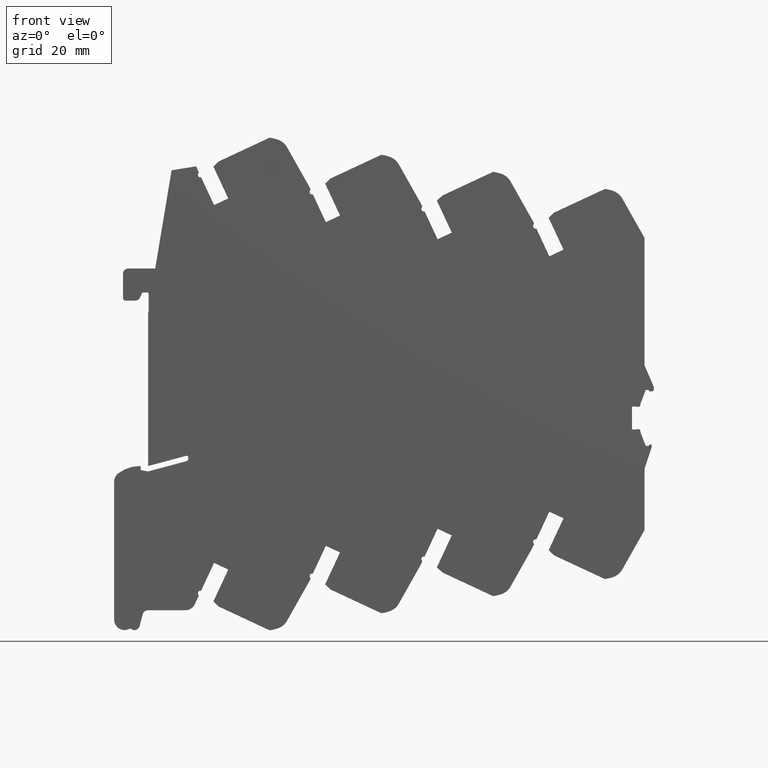
[diagram: clean part render]
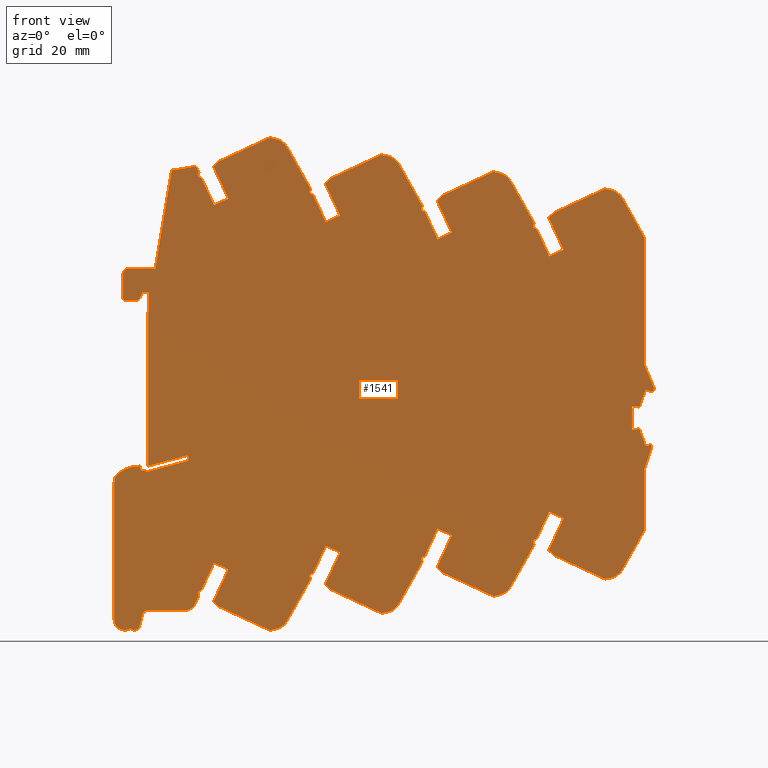
[diagram: same view with one face highlighted and labeled with its STEP entity id]
A machine part, front view. The second image highlights one B-rep face of the part: STEP entity #1541.
In plain terms, the highlighted planar face has unit normal (0, 1, 0).
Its self-contained STEP definition (entity closure, byte-faithful):
#1 = CARTESIAN_POINT ( 'NONE',  ( -3.000000000000000000, -13.79636712162409928, -36.92059045390751493 ) ) ;
#4 = EDGE_CURVE ( 'NONE', #2614, #7778, #4024, .T. ) ;
#5 = VERTEX_POINT ( 'NONE', #3377 ) ;
#15 = DIRECTION ( 'NONE',  ( 1.000000000000000000, 0.000000000000000000, 0.000000000000000000 ) ) ;
#34 = ORIENTED_EDGE ( 'NONE', *, *, #5604, .F. ) ;
#36 = ORIENTED_EDGE ( 'NONE', *, *, #5710, .F. ) ;
#71 = DIRECTION ( 'NONE',  ( 0.000000000000000000, 1.000000000000000000, 0.000000000000000000 ) ) ;
#74 = VECTOR ( 'NONE', #7901, 1000.000000000000000 ) ;
#77 = EDGE_CURVE ( 'NONE', #5434, #5, #2815, .T. ) ;
#79 = VERTEX_POINT ( 'NONE', #6131 ) ;
#80 = DIRECTION ( 'NONE',  ( 0.000000000000000000, 1.000000000000000000, 0.000000000000000000 ) ) ;
#90 = DIRECTION ( 'NONE',  ( 0.000000000000000000, -1.000000000000000000, 0.000000000000000000 ) ) ;
#91 = AXIS2_PLACEMENT_3D ( 'NONE', #5252, #3960, #6588 ) ;
#96 = VERTEX_POINT ( 'NONE', #6736 ) ;
#110 = CARTESIAN_POINT ( 'NONE',  ( -3.000000000000000000, 37.04256000000000171, 12.06949300000000669 ) ) ;
#117 = CARTESIAN_POINT ( 'NONE',  ( -3.000000000000000000, -36.30747228031760443, 43.07241960114301804 ) ) ;
#119 = VERTEX_POINT ( 'NONE', #2294 ) ;
#137 = CIRCLE ( 'NONE', #7716, 2.000000000000001776 ) ;
#139 = ORIENTED_EDGE ( 'NONE', *, *, #3642, .F. ) ;
#180 = DIRECTION ( 'NONE',  ( 1.000000000000000000, 0.000000000000000000, 0.000000000000000000 ) ) ;
#193 = VECTOR ( 'NONE', #1171, 1000.000000000000000 ) ;
#196 = CARTESIAN_POINT ( 'NONE',  ( -3.000000000000000000, -36.81058000000000163, -13.41150799999999244 ) ) ;
#197 = CARTESIAN_POINT ( 'NONE',  ( -3.000000000000000000, 37.26153209865420024, -12.71249004600318777 ) ) ;
#199 = DIRECTION ( 'NONE',  ( 0.000000000000000000, -0.2141236708556889523, -0.9768065589354346656 ) ) ;
#219 = EDGE_CURVE ( 'NONE', #7596, #6824, #7727, .T. ) ;
#220 = CARTESIAN_POINT ( 'NONE',  ( -3.000000000000000000, 44.60751836926140612, 1.552311315466008201 ) ) ;
#230 = VECTOR ( 'NONE', #6552, 1000.000000000000114 ) ;
#244 = DIRECTION ( 'NONE',  ( 0.000000000000000000, 0.4226182389767550451, 0.9063077976516512591 ) ) ;
#258 = CARTESIAN_POINT ( 'NONE',  ( -3.000000000000000000, 33.99153209865420422, 8.672509953996806686 ) ) ;
#262 = CARTESIAN_POINT ( 'NONE',  ( -3.000000000000000000, -10.57974388770190011, 51.87888517581471604 ) ) ;
#267 = ORIENTED_EDGE ( 'NONE', *, *, #4680, .F. ) ;
#270 = EDGE_CURVE ( 'NONE', #926, #7928, #2463, .T. ) ;
#272 = DIRECTION ( 'NONE',  ( 0.000000000000000000, -0.9063073489103417035, 0.4226192013043278406 ) ) ;
#287 = VECTOR ( 'NONE', #8210, 1000.000000000000000 ) ;
#290 = EDGE_CURVE ( 'NONE', #8020, #3423, #556, .T. ) ;
#291 = DIRECTION ( 'NONE',  ( 0.000000000000000000, 0.2588189847912709673, 0.9659258424494170381 ) ) ;
#294 = VECTOR ( 'NONE', #736, 1000.000000000000000 ) ;
#303 = EDGE_CURVE ( 'NONE', #7968, #2107, #3773, .T. ) ;
#304 = DIRECTION ( 'NONE',  ( 0.000000000000000000, 0.000000000000000000, 1.000000000000000000 ) ) ;
#309 = DIRECTION ( 'NONE',  ( 0.000000000000000000, 1.000000000000000000, 0.000000000000000000 ) ) ;
#320 = EDGE_CURVE ( 'NONE', #3365, #7755, #883, .T. ) ;
#324 = ORIENTED_EDGE ( 'NONE', *, *, #4068, .F. ) ;
#332 = CARTESIAN_POINT ( 'NONE',  ( -3.000000000000000000, -30.27057999999999893, 29.35849200000000536 ) ) ;
#343 = EDGE_CURVE ( 'NONE', #1853, #3951, #3232, .T. ) ;
#366 = CIRCLE ( 'NONE', #5462, 0.5000000000000073275 ) ;
#376 = LINE ( 'NONE', #3695, #3851 ) ;
#383 = EDGE_CURVE ( 'NONE', #6507, #3143, #2953, .T. ) ;
#384 = CARTESIAN_POINT ( 'NONE',  ( -3.000000000000000000, -10.77537241195799922, 51.83729815262960017 ) ) ;
#389 = CARTESIAN_POINT ( 'NONE',  ( -3.000000000000000000, -13.31340399999999846, -36.54999999999999005 ) ) ;
#405 = VERTEX_POINT ( 'NONE', #7858 ) ;
#407 = VERTEX_POINT ( 'NONE', #688 ) ;
#431 = ORIENTED_EDGE ( 'NONE', *, *, #1512, .F. ) ;
#437 = CARTESIAN_POINT ( 'NONE',  ( -3.000000000000000000, -0.1753730000000000011, 51.45000000000000284 ) ) ;
#438 = CARTESIAN_POINT ( 'NONE',  ( -3.000000000000000000, 18.27499999999999858, -44.14999999999998437 ) ) ;
#446 = EDGE_CURVE ( 'NONE', #8195, #5962, #8462, .T. ) ;
#455 = CARTESIAN_POINT ( 'NONE',  ( -3.000000000000000000, 48.09567196690120028, -20.82788384900638690 ) ) ;
#458 = VERTEX_POINT ( 'NONE', #1508 ) ;
#467 = DIRECTION ( 'NONE',  ( 0.000000000000000000, 1.000000000000000000, 0.000000000000000000 ) ) ;
#474 = DIRECTION ( 'NONE',  ( 1.000000000000000000, 0.000000000000000000, 0.000000000000000000 ) ) ;
#499 = VECTOR ( 'NONE', #2711, 1000.000000000000114 ) ;
#503 = VERTEX_POINT ( 'NONE', #4100 ) ;
#506 = CARTESIAN_POINT ( 'NONE',  ( -3.000000000000000000, -29.66344564292460362, 29.64160416650739904 ) ) ;
#512 = VERTEX_POINT ( 'NONE', #1466 ) ;
#515 = ORIENTED_EDGE ( 'NONE', *, *, #6915, .F. ) ;
#517 = LINE ( 'NONE', #7080, #8230 ) ;
#520 = DIRECTION ( 'NONE',  ( 1.000000000000000000, 0.000000000000000000, 0.000000000000000000 ) ) ;
#525 = CARTESIAN_POINT ( 'NONE',  ( -3.000000000000000000, -29.66344564292460362, 29.64160416650739904 ) ) ;
#529 = ORIENTED_EDGE ( 'NONE', *, *, #5590, .T. ) ;
#536 = DIRECTION ( 'NONE',  ( 0.000000000000000000, -0.9063081429139643319, -0.4226174985584971178 ) ) ;
#550 = ORIENTED_EDGE ( 'NONE', *, *, #5893, .T. ) ;
#554 = DIRECTION ( 'NONE',  ( 1.000000000000000000, 0.000000000000000000, 0.000000000000000000 ) ) ;
#556 = LINE ( 'NONE', #5870, #4325 ) ;
#557 = EDGE_CURVE ( 'NONE', #1370, #4038, #6729, .T. ) ;
#567 = VERTEX_POINT ( 'NONE', #3495 ) ;
#569 = DIRECTION ( 'NONE',  ( 0.000000000000000000, -0.7071067811865441310, 0.7071067811865510144 ) ) ;
#578 = EDGE_CURVE ( 'NONE', #6397, #2956, #3491, .T. ) ;
#580 = LINE ( 'NONE', #3214, #2214 ) ;
#590 = LINE ( 'NONE', #6328, #1809 ) ;
#618 = VERTEX_POINT ( 'NONE', #6246 ) ;
#622 = CIRCLE ( 'NONE', #6545, 0.5000000000000177636 ) ;
#626 = ORIENTED_EDGE ( 'NONE', *, *, #3855, .T. ) ;
#627 = ORIENTED_EDGE ( 'NONE', *, *, #7647, .F. ) ;
#630 = EDGE_CURVE ( 'NONE', #6779, #836, #3662, .T. ) ;
#633 = AXIS2_PLACEMENT_3D ( 'NONE', #8168, #871, #4234 ) ;
#641 = CIRCLE ( 'NONE', #8087, 0.5000000000000073275 ) ;
#654 = CARTESIAN_POINT ( 'NONE',  ( -3.000000000000000000, -0.4710022288112210020, 51.87887992351871702 ) ) ;
#688 = CARTESIAN_POINT ( 'NONE',  ( -3.000000000000000000, -36.33567188478399856, 43.32711652560149673 ) ) ;
#690 = LINE ( 'NONE', #1256, #294 ) ;
#691 = DIRECTION ( 'NONE',  ( 0.000000000000000000, 0.000000000000000000, 1.000000000000000000 ) ) ;
#707 = VERTEX_POINT ( 'NONE', #506 ) ;
#714 = CARTESIAN_POINT ( 'NONE',  ( -3.000000000000000000, 42.62783400000000000, -35.07499999999998863 ) ) ;
#715 = EDGE_CURVE ( 'NONE', #1128, #2732, #1078, .T. ) ;
#729 = ORIENTED_EDGE ( 'NONE', *, *, #6423, .F. ) ;
#736 = DIRECTION ( 'NONE',  ( 0.000000000000000000, 1.000000000000000000, 0.000000000000000000 ) ) ;
#740 = VERTEX_POINT ( 'NONE', #1760 ) ;
#742 = CARTESIAN_POINT ( 'NONE',  ( -3.000000000000000000, -7.625373000000000623, 48.35000000000000853 ) ) ;
#750 = EDGE_CURVE ( 'NONE', #836, #119, #2535, .T. ) ;
#757 = VERTEX_POINT ( 'NONE', #6635 ) ;
#760 = EDGE_CURVE ( 'NONE', #3229, #5962, #1891, .T. ) ;
#769 = CIRCLE ( 'NONE', #6274, 0.4000000000000114575 ) ;
#779 = DIRECTION ( 'NONE',  ( 1.000000000000000000, 0.000000000000000000, 0.000000000000000000 ) ) ;
#792 = DIRECTION ( 'NONE',  ( 0.000000000000000000, 0.6849492895505460144, 0.7285907429718019301 ) ) ;
#803 = CARTESIAN_POINT ( 'NONE',  ( -3.000000000000000000, 35.21623499999999751, -31.61891399999998953 ) ) ;
#805 = LINE ( 'NONE', #3523, #8481 ) ;
#833 = VERTEX_POINT ( 'NONE', #4595 ) ;
#834 = ORIENTED_EDGE ( 'NONE', *, *, #4854, .F. ) ;
#836 = VERTEX_POINT ( 'NONE', #7237 ) ;
#840 = LINE ( 'NONE', #6100, #8281 ) ;
#846 = LINE ( 'NONE', #6628, #6709 ) ;
#848 = CIRCLE ( 'NONE', #4690, 2.000000000000001776 ) ;
#854 = DIRECTION ( 'NONE',  ( 0.000000000000000000, 0.4226182389767559333, -0.9063077976516507039 ) ) ;
#863 = CARTESIAN_POINT ( 'NONE',  ( -3.000000000000000000, 42.59592999999999563, -31.74999999999998579 ) ) ;
#871 = DIRECTION ( 'NONE',  ( 1.000000000000000000, 0.000000000000000000, 0.000000000000000000 ) ) ;
#880 = VERTEX_POINT ( 'NONE', #197 ) ;
#881 = CARTESIAN_POINT ( 'NONE',  ( -3.000000000000000000, 16.92500000000000071, -48.54999999999999005 ) ) ;
#883 = CIRCLE ( 'NONE', #1848, 0.1999999999999987899 ) ;
#897 = LINE ( 'NONE', #6805, #6149 ) ;
#902 = DIRECTION ( 'NONE',  ( 0.000000000000000000, -0.9490156814426169429, -0.3152288634881100227 ) ) ;
#909 = EDGE_CURVE ( 'NONE', #2179, #8385, #2055, .T. ) ;
#911 = AXIS2_PLACEMENT_3D ( 'NONE', #1485, #4708, #7354 ) ;
#913 = DIRECTION ( 'NONE',  ( 0.000000000000000000, 0.6849489210215108370, -0.7285910894263447624 ) ) ;
#919 = CARTESIAN_POINT ( 'NONE',  ( -3.000000000000000000, 33.21408499999999719, -7.514999999999993463 ) ) ;
#925 = ORIENTED_EDGE ( 'NONE', *, *, #3513, .F. ) ;
#926 = VERTEX_POINT ( 'NONE', #2232 ) ;
#947 = EDGE_CURVE ( 'NONE', #740, #7232, #5372, .T. ) ;
#949 = CARTESIAN_POINT ( 'NONE',  ( -3.000000000000000000, -10.67537300000000045, 51.12469592788030326 ) ) ;
#953 = ORIENTED_EDGE ( 'NONE', *, *, #7651, .F. ) ;
#960 = LINE ( 'NONE', #6047, #2616 ) ;
#969 = DIRECTION ( 'NONE',  ( 0.000000000000000000, 1.000000000000000000, 0.000000000000000000 ) ) ;
#970 = DIRECTION ( 'NONE',  ( 1.000000000000000000, 0.000000000000000000, 0.000000000000000000 ) ) ;
#974 = VERTEX_POINT ( 'NONE', #6802 ) ;
#983 = DIRECTION ( 'NONE',  ( 0.000000000000000000, -0.2141227343362750724, 0.9768067642273762230 ) ) ;
#986 = EDGE_CURVE ( 'NONE', #7719, #757, #8439, .T. ) ;
#992 = DIRECTION ( 'NONE',  ( 0.000000000000000000, -0.2141236708556689960, -0.9768065589354389955 ) ) ;
#994 = VECTOR ( 'NONE', #1846, 1000.000000000000227 ) ;
#996 = LINE ( 'NONE', #3141, #6285 ) ;
#1015 = EDGE_CURVE ( 'NONE', #8095, #5001, #2517, .T. ) ;
#1021 = CARTESIAN_POINT ( 'NONE',  ( -3.000000000000000000, 39.32592999999999961, -10.36499999999999311 ) ) ;
#1028 = AXIS2_PLACEMENT_3D ( 'NONE', #949, #2196, #6038 ) ;
#1029 = ORIENTED_EDGE ( 'NONE', *, *, #1718, .F. ) ;
#1034 = EDGE_CURVE ( 'NONE', #1405, #5669, #3891, .T. ) ;
#1047 = CARTESIAN_POINT ( 'NONE',  ( -3.000000000000000000, 44.60521585479790474, -20.55000050920868659 ) ) ;
#1053 = CIRCLE ( 'NONE', #6558, 3.349999999997486988 ) ;
#1062 = VERTEX_POINT ( 'NONE', #2399 ) ;
#1064 = VERTEX_POINT ( 'NONE', #6847 ) ;
#1065 = VERTEX_POINT ( 'NONE', #3568 ) ;
#1068 = DIRECTION ( 'NONE',  ( 0.000000000000000000, 1.000000000000000000, 0.000000000000000000 ) ) ;
#1071 = CARTESIAN_POINT ( 'NONE',  ( -3.000000000000000000, -42.32500000000000284, -37.11722699999998554 ) ) ;
#1075 = VERTEX_POINT ( 'NONE', #7665 ) ;
#1078 = LINE ( 'NONE', #2367, #5135 ) ;
#1084 = ORIENTED_EDGE ( 'NONE', *, *, #270, .F. ) ;
#1093 = VERTEX_POINT ( 'NONE', #1992 ) ;
#1099 = ORIENTED_EDGE ( 'NONE', *, *, #3925, .F. ) ;
#1109 = CIRCLE ( 'NONE', #4676, 3.349999999997368860 ) ;
#1110 = VERTEX_POINT ( 'NONE', #6448 ) ;
#1113 = EDGE_CURVE ( 'NONE', #3449, #2332, #7996, .T. ) ;
#1114 = ORIENTED_EDGE ( 'NONE', *, *, #1880, .F. ) ;
#1128 = VERTEX_POINT ( 'NONE', #5310 ) ;
#1145 = VECTOR ( 'NONE', #7349, 1000.000000000000227 ) ;
#1149 = ORIENTED_EDGE ( 'NONE', *, *, #1482, .F. ) ;
#1150 = CARTESIAN_POINT ( 'NONE',  ( -3.000000000000000000, -13.05275867112739974, -36.84999999999979536 ) ) ;
#1151 = DIRECTION ( 'NONE',  ( 0.000000000000000000, 1.000000000000000000, 0.000000000000000000 ) ) ;
#1166 = ORIENTED_EDGE ( 'NONE', *, *, #4, .F. ) ;
#1171 = DIRECTION ( 'NONE',  ( 0.000000000000000000, 0.000000000000000000, -1.000000000000000000 ) ) ;
#1174 = DIRECTION ( 'NONE',  ( 0.000000000000000000, 1.000000000000000000, 0.000000000000000000 ) ) ;
#1177 = CARTESIAN_POINT ( 'NONE',  ( -3.000000000000000000, -23.45623000000000147, 32.53607600000000133 ) ) ;
#1178 = CARTESIAN_POINT ( 'NONE',  ( -3.000000000000000000, 40.53275026795920155, -34.09804612495138798 ) ) ;
#1182 = CIRCLE ( 'NONE', #2284, 0.2000000000000074496 ) ;
#1198 = ORIENTED_EDGE ( 'NONE', *, *, #7790, .F. ) ;
#1199 = EDGE_CURVE ( 'NONE', #1065, #8167, #6373, .T. ) ;
#1210 = CARTESIAN_POINT ( 'NONE',  ( -3.000000000000000000, 31.20500000000000185, 29.93000000000000682 ) ) ;
#1213 = LINE ( 'NONE', #1252, #230 ) ;
#1227 = CARTESIAN_POINT ( 'NONE',  ( -3.000000000000000000, -17.72635200000000211, -50.74999999999999289 ) ) ;
#1229 = ORIENTED_EDGE ( 'NONE', *, *, #557, .F. ) ;
#1231 = DIRECTION ( 'NONE',  ( 0.000000000000000000, -1.000000000000000000, 0.000000000000000000 ) ) ;
#1252 = CARTESIAN_POINT ( 'NONE',  ( -3.000000000000000000, -31.26408499999999790, -7.514999999999993463 ) ) ;
#1256 = CARTESIAN_POINT ( 'NONE',  ( -3.000000000000000000, -14.72499999999999964, -44.24999999999999289 ) ) ;
#1266 = CARTESIAN_POINT ( 'NONE',  ( -3.000000000000000000, 28.95057999999999865, 50.74349200000001048 ) ) ;
#1279 = CARTESIAN_POINT ( 'NONE',  ( -3.000000000000000000, -43.06618100410140215, -45.26306500109895126 ) ) ;
#1289 = VERTEX_POINT ( 'NONE', #4237 ) ;
#1294 = CARTESIAN_POINT ( 'NONE',  ( -3.000000000000000000, 34.47500000000000142, 8.545000000000010587 ) ) ;
#1306 = CARTESIAN_POINT ( 'NONE',  ( -3.000000000000000000, -42.84747228031760358, 0.3024196011430085873 ) ) ;
#1319 = VECTOR ( 'NONE', #4211, 1000.000000000000000 ) ;
#1336 = DIRECTION ( 'NONE',  ( 1.000000000000000000, 0.000000000000000000, 0.000000000000000000 ) ) ;
#1346 = CARTESIAN_POINT ( 'NONE',  ( -3.000000000000000000, -45.85315895521040375, -47.74328916995813898 ) ) ;
#1352 = ORIENTED_EDGE ( 'NONE', *, *, #6678, .F. ) ;
#1353 = EDGE_CURVE ( 'NONE', #6824, #3967, #5525, .T. ) ;
#1356 = VERTEX_POINT ( 'NONE', #4484 ) ;
#1370 = VERTEX_POINT ( 'NONE', #4399 ) ;
#1374 = LINE ( 'NONE', #1505, #6834 ) ;
#1391 = CARTESIAN_POINT ( 'NONE',  ( -3.000000000000000000, 31.94622999999999990, -10.23392399999999114 ) ) ;
#1405 = VERTEX_POINT ( 'NONE', #8416 ) ;
#1409 = DIRECTION ( 'NONE',  ( 1.000000000000000000, 0.000000000000000000, 0.000000000000000000 ) ) ;
#1413 = CARTESIAN_POINT ( 'NONE',  ( -3.000000000000000000, 40.31255999999999773, -9.315506999999993099 ) ) ;
#1424 = CARTESIAN_POINT ( 'NONE',  ( -3.000000000000000000, -32.84521471387499503, 43.60500013366809924 ) ) ;
#1425 = CARTESIAN_POINT ( 'NONE',  ( -3.000000000000000000, -44.12500000000000000, -50.74999999999999289 ) ) ;
#1426 = LINE ( 'NONE', #6040, #3396 ) ;
#1427 = CARTESIAN_POINT ( 'NONE',  ( -3.000000000000000000, -43.06618100410140215, -45.26306500109895126 ) ) ;
#1434 = DIRECTION ( 'NONE',  ( 0.000000000000000000, 1.000000000000000000, 0.000000000000000000 ) ) ;
#1436 = AXIS2_PLACEMENT_3D ( 'NONE', #4566, #4649, #3883 ) ;
#1448 = CARTESIAN_POINT ( 'NONE',  ( -3.000000000000000000, 36.48408500000000032, -28.89999999999998792 ) ) ;
#1454 = ORIENTED_EDGE ( 'NONE', *, *, #3249, .F. ) ;
#1459 = ORIENTED_EDGE ( 'NONE', *, *, #2303, .F. ) ;
#1460 = VECTOR ( 'NONE', #2941, 999.9999999999998863 ) ;
#1466 = CARTESIAN_POINT ( 'NONE',  ( -3.000000000000000000, -15.33446299999999951, -45.64999999999999147 ) ) ;
#1471 = EDGE_CURVE ( 'NONE', #3143, #7417, #4443, .T. ) ;
#1482 = EDGE_CURVE ( 'NONE', #5752, #5434, #848, .T. ) ;
#1485 = CARTESIAN_POINT ( 'NONE',  ( -3.000000000000000000, -39.21494925318400249, 21.85646709387190612 ) ) ;
#1503 = EDGE_CURVE ( 'NONE', #618, #3983, #7040, .T. ) ;
#1505 = CARTESIAN_POINT ( 'NONE',  ( -3.000000000000000000, -35.09255900000000139, 12.06949300000000669 ) ) ;
#1508 = CARTESIAN_POINT ( 'NONE',  ( -3.000000000000000000, -28.77153209865419825, 30.05750995399680292 ) ) ;
#1512 = EDGE_CURVE ( 'NONE', #8128, #5752, #2679, .T. ) ;
#1527 = CARTESIAN_POINT ( 'NONE',  ( -3.000000000000000000, -40.64592999999999989, -31.74999999999998579 ) ) ;
#1536 = ORIENTED_EDGE ( 'NONE', *, *, #3273, .F. ) ;
#1537 = EDGE_CURVE ( 'NONE', #1356, #6498, #1538, .T. ) ;
#1538 = CIRCLE ( 'NONE', #2363, 0.4000000000001086020 ) ;
#1541 = ADVANCED_FACE ( 'NONE', ( #5300 ), #7210, .F. ) ;
#1547 = CARTESIAN_POINT ( 'NONE',  ( -3.000000000000000000, 30.72153209865419754, 30.05750995399680292 ) ) ;
#1548 = CARTESIAN_POINT ( 'NONE',  ( -3.000000000000000000, -35.09255900000000139, 12.06949300000000669 ) ) ;
#1553 = CARTESIAN_POINT ( 'NONE',  ( -3.000000000000000000, -11.13733343649129992, 52.12450785501330586 ) ) ;
#1562 = LINE ( 'NONE', #4190, #5609 ) ;
#1568 = EDGE_CURVE ( 'NONE', #3744, #618, #690, .T. ) ;
#1582 = CARTESIAN_POINT ( 'NONE',  ( -3.000000000000000000, -0.3788611766936069714, 52.31237316871490606 ) ) ;
#1592 = DIRECTION ( 'NONE',  ( 1.000000000000000000, 0.000000000000000000, 0.000000000000000000 ) ) ;
#1596 = AXIS2_PLACEMENT_3D ( 'NONE', #2884, #7374, #3535 ) ;
#1602 = VECTOR ( 'NONE', #2889, 1000.000000000000227 ) ;
#1643 = EDGE_CURVE ( 'NONE', #4038, #3424, #3971, .T. ) ;
#1649 = CARTESIAN_POINT ( 'NONE',  ( -3.000000000000000000, -14.92500000000000071, -45.84999999999998721 ) ) ;
#1663 = ORIENTED_EDGE ( 'NONE', *, *, #3575, .F. ) ;
#1667 = DIRECTION ( 'NONE',  ( 1.000000000000000000, 0.000000000000000000, 0.000000000000000000 ) ) ;
#1671 = CARTESIAN_POINT ( 'NONE',  ( -3.000000000000000000, 17.92500000000000071, -46.70984690908846204 ) ) ;
#1677 = EDGE_CURVE ( 'NONE', #8167, #4726, #6857, .T. ) ;
#1681 = DIRECTION ( 'NONE',  ( 1.000000000000000000, 0.000000000000000000, 0.000000000000000000 ) ) ;
#1683 = VECTOR ( 'NONE', #3663, 1000.000000000000000 ) ;
#1684 = CARTESIAN_POINT ( 'NONE',  ( -3.000000000000000000, -39.06850000000000023, -34.21656699999999063 ) ) ;
#1685 = LINE ( 'NONE', #5035, #5033 ) ;
#1701 = DIRECTION ( 'NONE',  ( 0.000000000000000000, 1.000000000000000000, 0.000000000000000000 ) ) ;
#1710 = LINE ( 'NONE', #4338, #8225 ) ;
#1718 = EDGE_CURVE ( 'NONE', #405, #974, #2283, .T. ) ;
#1726 = VECTOR ( 'NONE', #467, 1000.000000000000000 ) ;
#1736 = ORIENTED_EDGE ( 'NONE', *, *, #8057, .F. ) ;
#1760 = CARTESIAN_POINT ( 'NONE',  ( -3.000000000000000000, -42.65751672738230127, 1.552314243649308256 ) ) ;
#1761 = EDGE_CURVE ( 'NONE', #4614, #6129, #6206, .T. ) ;
#1762 = DIRECTION ( 'NONE',  ( 0.000000000000000000, -0.9063073489103342650, 0.4226192013043441054 ) ) ;
#1779 = ORIENTED_EDGE ( 'NONE', *, *, #5292, .F. ) ;
#1785 = ORIENTED_EDGE ( 'NONE', *, *, #5998, .T. ) ;
#1786 = VECTOR ( 'NONE', #199, 999.9999999999998863 ) ;
#1796 = ORIENTED_EDGE ( 'NONE', *, *, #6612, .F. ) ;
#1798 = ORIENTED_EDGE ( 'NONE', *, *, #6455, .F. ) ;
#1805 = CARTESIAN_POINT ( 'NONE',  ( -3.000000000000000000, -24.72408499999999876, 35.25500000000001677 ) ) ;
#1806 = DIRECTION ( 'NONE',  ( 0.000000000000000000, 0.4226182192191450526, 0.9063078068647751895 ) ) ;
#1809 = VECTOR ( 'NONE', #5070, 1000.000000000000227 ) ;
#1816 = CARTESIAN_POINT ( 'NONE',  ( -3.000000000000000000, -26.72623000000000104, 11.15107600000001042 ) ) ;
#1829 = EDGE_CURVE ( 'NONE', #8540, #4656, #3017, .T. ) ;
#1831 = ORIENTED_EDGE ( 'NONE', *, *, #6413, .F. ) ;
#1841 = EDGE_CURVE ( 'NONE', #119, #7408, #6941, .T. ) ;
#1846 = DIRECTION ( 'NONE',  ( 0.000000000000000000, 0.4226182389767559333, -0.9063077976516507039 ) ) ;
#1848 = AXIS2_PLACEMENT_3D ( 'NONE', #5826, #3193, #6645 ) ;
#1853 = VERTEX_POINT ( 'NONE', #4994 ) ;
#1864 = ORIENTED_EDGE ( 'NONE', *, *, #1034, .T. ) ;
#1870 = AXIS2_PLACEMENT_3D ( 'NONE', #4169, #1409, #2745 ) ;
#1874 = EDGE_CURVE ( 'NONE', #5821, #7408, #4425, .T. ) ;
#1876 = ORIENTED_EDGE ( 'NONE', *, *, #1537, .F. ) ;
#1879 = CARTESIAN_POINT ( 'NONE',  ( -3.000000000000000000, 36.43974242191490021, 46.52356632573421535 ) ) ;
#1880 = EDGE_CURVE ( 'NONE', #3142, #2966, #5729, .T. ) ;
#1886 = AXIS2_PLACEMENT_3D ( 'NONE', #7770, #6511, #7206 ) ;
#1891 = LINE ( 'NONE', #2495, #4312 ) ;
#1892 = DIRECTION ( 'NONE',  ( 0.000000000000000000, -1.000000000000000000, 0.000000000000000000 ) ) ;
#1918 = ORIENTED_EDGE ( 'NONE', *, *, #1643, .F. ) ;
#1919 = CARTESIAN_POINT ( 'NONE',  ( -3.000000000000000000, 28.93662499999999937, 50.75000000000000711 ) ) ;
#1921 = CARTESIAN_POINT ( 'NONE',  ( -3.000000000000000000, -3.425373000000000001, 48.35000000000000853 ) ) ;
#1926 = EDGE_CURVE ( 'NONE', #7347, #3687, #5032, .T. ) ;
#1927 = VECTOR ( 'NONE', #3078, 1000.000000000000000 ) ;
#1928 = VERTEX_POINT ( 'NONE', #3098 ) ;
#1930 = DIRECTION ( 'NONE',  ( 0.000000000000000000, 0.9063077943610161613, -0.4226182460335450308 ) ) ;
#1942 = DIRECTION ( 'NONE',  ( 1.000000000000000000, 0.000000000000000000, 0.000000000000000000 ) ) ;
#1944 = CARTESIAN_POINT ( 'NONE',  ( -3.000000000000000000, 41.87500000000000000, -39.74999999999999289 ) ) ;
#1963 = VECTOR ( 'NONE', #5332, 1000.000000000000114 ) ;
#1987 = CARTESIAN_POINT ( 'NONE',  ( -3.000000000000000000, -0.3036993831667649801, 50.93797985291601549 ) ) ;
#1991 = CARTESIAN_POINT ( 'NONE',  ( -3.000000000000000000, -8.086747000000000796, 49.97000000000000597 ) ) ;
#1992 = CARTESIAN_POINT ( 'NONE',  ( -3.000000000000000000, 0.4716932824673149560, 52.50952687886500314 ) ) ;
#1998 = CARTESIAN_POINT ( 'NONE',  ( -3.000000000000000000, 35.21623499999999751, -31.61891399999998953 ) ) ;
#1999 = DIRECTION ( 'NONE',  ( 0.000000000000000000, -1.000000000000000000, 0.000000000000000000 ) ) ;
#2000 = AXIS2_PLACEMENT_3D ( 'NONE', #8504, #1942, #8374 ) ;
#2002 = EDGE_CURVE ( 'NONE', #5068, #8020, #7845, .T. ) ;
#2004 = LINE ( 'NONE', #714, #5080 ) ;
#2006 = VERTEX_POINT ( 'NONE', #2016 ) ;
#2008 = CARTESIAN_POINT ( 'NONE',  ( -3.000000000000000000, -44.29974242191489964, -17.63143367426578934 ) ) ;
#2016 = CARTESIAN_POINT ( 'NONE',  ( -3.000000000000000000, 38.28567196690119800, 43.32711615099361069 ) ) ;
#2033 = ORIENTED_EDGE ( 'NONE', *, *, #3010, .F. ) ;
#2038 = DIRECTION ( 'NONE',  ( 0.000000000000000000, 1.000000000000000000, 0.000000000000000000 ) ) ;
#2041 = EDGE_CURVE ( 'NONE', #7618, #5228, #5230, .T. ) ;
#2055 = LINE ( 'NONE', #6029, #2245 ) ;
#2059 = ORIENTED_EDGE ( 'NONE', *, *, #4709, .F. ) ;
#2064 = VERTEX_POINT ( 'NONE', #5856 ) ;
#2074 = AXIS2_PLACEMENT_3D ( 'NONE', #2831, #4764, #5463 ) ;
#2085 = ORIENTED_EDGE ( 'NONE', *, *, #1015, .T. ) ;
#2092 = DIRECTION ( 'NONE',  ( 0.000000000000000000, -0.9190536252302482501, 0.3941325081126120233 ) ) ;
#2097 = CARTESIAN_POINT ( 'NONE',  ( -3.000000000000000000, 48.09567196690120028, -20.82788384900638690 ) ) ;
#2099 = CARTESIAN_POINT ( 'NONE',  ( -3.000000000000000000, -36.11751672738229502, 44.32231424364941574 ) ) ;
#2107 = VERTEX_POINT ( 'NONE', #6721 ) ;
#2109 = EDGE_CURVE ( 'NONE', #2956, #407, #5373, .T. ) ;
#2114 = DIRECTION ( 'NONE',  ( 1.000000000000000000, 0.000000000000000000, 0.000000000000000000 ) ) ;
#2119 = DIRECTION ( 'NONE',  ( 0.000000000000000000, 0.9063077943610167164, -0.4226182460335438096 ) ) ;
#2150 = ORIENTED_EDGE ( 'NONE', *, *, #8419, .F. ) ;
#2153 = LINE ( 'NONE', #8026, #4745 ) ;
#2154 = DIRECTION ( 'NONE',  ( 1.000000000000000000, 0.000000000000000000, 0.000000000000000000 ) ) ;
#2157 = DIRECTION ( 'NONE',  ( 0.000000000000000000, 0.4226182966199911184, -0.9063077707721682863 ) ) ;
#2164 = CARTESIAN_POINT ( 'NONE',  ( -3.000000000000000000, -42.87567188478399771, 0.5571165256015100375 ) ) ;
#2168 = DIRECTION ( 'NONE',  ( 0.000000000000000000, 0.4226182966199911184, -0.9063077707721682863 ) ) ;
#2171 = EDGE_CURVE ( 'NONE', #5125, #7808, #7413, .T. ) ;
#2179 = VERTEX_POINT ( 'NONE', #1547 ) ;
#2187 = LINE ( 'NONE', #4047, #7440 ) ;
#2191 = VERTEX_POINT ( 'NONE', #6030 ) ;
#2196 = DIRECTION ( 'NONE',  ( 1.000000000000000000, 0.000000000000000000, 0.000000000000000000 ) ) ;
#2198 = EDGE_CURVE ( 'NONE', #974, #926, #2187, .T. ) ;
#2214 = VECTOR ( 'NONE', #8271, 1000.000000000000114 ) ;
#2222 = AXIS2_PLACEMENT_3D ( 'NONE', #4722, #5286, #6672 ) ;
#2225 = CARTESIAN_POINT ( 'NONE',  ( -3.000000000000000000, 47.87751836926140214, -19.83268868453399136 ) ) ;
#2227 = VECTOR ( 'NONE', #2934, 1000.000000000000000 ) ;
#2232 = CARTESIAN_POINT ( 'NONE',  ( -3.000000000000000000, -26.72623000000000104, 11.15107600000001042 ) ) ;
#2240 = DIRECTION ( 'NONE',  ( 0.000000000000000000, -1.000000000000000000, 0.000000000000000000 ) ) ;
#2242 = CARTESIAN_POINT ( 'NONE',  ( -3.000000000000000000, -34.10593000000000075, 11.02000000000000846 ) ) ;
#2245 = VECTOR ( 'NONE', #4089, 999.9999999999998863 ) ;
#2247 = CARTESIAN_POINT ( 'NONE',  ( -3.000000000000000000, -36.11521471387490578, 22.22000013366800530 ) ) ;
#2250 = DIRECTION ( 'NONE',  ( 1.000000000000000000, 0.000000000000000000, 0.000000000000000000 ) ) ;
#2262 = CARTESIAN_POINT ( 'NONE',  ( -3.000000000000000000, -10.88030717555839999, 51.85000000000001563 ) ) ;
#2267 = CARTESIAN_POINT ( 'NONE',  ( -3.000000000000000000, -30.27057999999999893, 29.35849200000000536 ) ) ;
#2275 = EDGE_CURVE ( 'NONE', #6408, #7757, #5021, .T. ) ;
#2282 = CARTESIAN_POINT ( 'NONE',  ( -3.000000000000000000, -40.64592999999999989, -31.74999999999998579 ) ) ;
#2283 = LINE ( 'NONE', #2242, #3734 ) ;
#2284 = AXIS2_PLACEMENT_3D ( 'NONE', #384, #1592, #2931 ) ;
#2292 = VERTEX_POINT ( 'NONE', #332 ) ;
#2294 = CARTESIAN_POINT ( 'NONE',  ( -3.000000000000000000, -33.26623499999999467, -31.61891399999998953 ) ) ;
#2296 = LINE ( 'NONE', #4276, #5366 ) ;
#2303 = EDGE_CURVE ( 'NONE', #7503, #7596, #6323, .T. ) ;
#2324 = CARTESIAN_POINT ( 'NONE',  ( -3.000000000000000000, -29.25499999999999901, 29.93000000000000682 ) ) ;
#2329 = VERTEX_POINT ( 'NONE', #1071 ) ;
#2332 = VERTEX_POINT ( 'NONE', #5637 ) ;
#2336 = DIRECTION ( 'NONE',  ( 0.000000000000000000, 1.000000000000000000, 0.000000000000000000 ) ) ;
#2343 = EDGE_CURVE ( 'NONE', #3423, #6397, #376, .T. ) ;
#2345 = DIRECTION ( 'NONE',  ( 0.000000000000000000, -0.9063073489103411484, -0.4226192013043290618 ) ) ;
#2357 = VECTOR ( 'NONE', #7350, 1000.000000000000227 ) ;
#2363 = AXIS2_PLACEMENT_3D ( 'NONE', #7904, #779, #6556 ) ;
#2366 = LINE ( 'NONE', #4992, #8478 ) ;
#2367 = CARTESIAN_POINT ( 'NONE',  ( -3.000000000000000000, -33.54057999999999851, 7.973492000000012681 ) ) ;
#2375 = VERTEX_POINT ( 'NONE', #4255 ) ;
#2383 = EDGE_CURVE ( 'NONE', #7105, #6808, #7191, .T. ) ;
#2386 = VERTEX_POINT ( 'NONE', #2486 ) ;
#2398 = CARTESIAN_POINT ( 'NONE',  ( -3.000000000000000000, 48.06747229475460159, -21.08258036789659329 ) ) ;
#2399 = CARTESIAN_POINT ( 'NONE',  ( -3.000000000000000000, 31.94622999999999990, -10.23392399999999114 ) ) ;
#2409 = EDGE_CURVE ( 'NONE', #3424, #4499, #2004, .T. ) ;
#2411 = DIRECTION ( 'NONE',  ( 0.000000000000000000, 0.9063077943610161613, 0.4226182460335450308 ) ) ;
#2428 = CARTESIAN_POINT ( 'NONE',  ( -3.000000000000000000, -7.725372999999999379, 48.45000000000001705 ) ) ;
#2438 = EDGE_CURVE ( 'NONE', #3082, #7503, #6496, .T. ) ;
#2443 = CARTESIAN_POINT ( 'NONE',  ( -3.000000000000000000, 41.55567196690120113, 21.94211615099361268 ) ) ;
#2461 = LINE ( 'NONE', #4478, #6705 ) ;
#2463 = LINE ( 'NONE', #1816, #4873 ) ;
#2468 = CARTESIAN_POINT ( 'NONE',  ( -3.000000000000000000, -32.52499999999999858, 8.545000000000010587 ) ) ;
#2469 = EDGE_CURVE ( 'NONE', #7968, #4063, #5807, .T. ) ;
#2486 = CARTESIAN_POINT ( 'NONE',  ( -3.000000000000000000, 33.21408499999999719, -7.514999999999993463 ) ) ;
#2492 = AXIS2_PLACEMENT_3D ( 'NONE', #5152, #3128, #1068 ) ;
#2495 = CARTESIAN_POINT ( 'NONE',  ( -3.000000000000000000, -8.225372999999999379, 49.97000000000000597 ) ) ;
#2505 = VECTOR ( 'NONE', #1762, 1000.000000000000000 ) ;
#2506 = CARTESIAN_POINT ( 'NONE',  ( -3.000000000000000000, -0.3753730000000179978, 51.12469592788030326 ) ) ;
#2512 = EDGE_CURVE ( 'NONE', #7437, #1093, #7314, .T. ) ;
#2517 = CIRCLE ( 'NONE', #4706, 0.5000000000000004441 ) ;
#2529 = CARTESIAN_POINT ( 'NONE',  ( -3.000000000000000000, 40.53275026795920155, -34.09804612495138798 ) ) ;
#2535 = LINE ( 'NONE', #7803, #4037 ) ;
#2537 = AXIS2_PLACEMENT_3D ( 'NONE', #5910, #5261, #2595 ) ;
#2546 = ORIENTED_EDGE ( 'NONE', *, *, #7423, .F. ) ;
#2547 = DIRECTION ( 'NONE',  ( 0.000000000000000000, 1.000000000000000000, 0.000000000000000000 ) ) ;
#2559 = CARTESIAN_POINT ( 'NONE',  ( -3.000000000000000000, 38.15344564292470153, -13.12839583349259165 ) ) ;
#2561 = CARTESIAN_POINT ( 'NONE',  ( -3.000000000000000000, -0.08541682451658638708, 52.25000000000120792 ) ) ;
#2594 = CARTESIAN_POINT ( 'NONE',  ( -3.000000000000000000, 4.574627000000000443, 50.75000000000000711 ) ) ;
#2595 = DIRECTION ( 'NONE',  ( 0.000000000000000000, 1.000000000000000000, 0.000000000000000000 ) ) ;
#2614 = VERTEX_POINT ( 'NONE', #4799 ) ;
#2616 = VECTOR ( 'NONE', #7388, 1000.000000000000114 ) ;
#2655 = CARTESIAN_POINT ( 'NONE',  ( -3.000000000000000000, 42.62783400000000000, -35.07499999999998863 ) ) ;
#2679 = LINE ( 'NONE', #1425, #8293 ) ;
#2700 = ORIENTED_EDGE ( 'NONE', *, *, #5194, .F. ) ;
#2704 = ORIENTED_EDGE ( 'NONE', *, *, #2109, .F. ) ;
#2711 = DIRECTION ( 'NONE',  ( 0.000000000000000000, -0.9063077764700133709, -0.4226182844009241379 ) ) ;
#2721 = DIRECTION ( 'NONE',  ( 0.000000000000000000, 1.000000000000000000, 0.000000000000000000 ) ) ;
#2728 = VERTEX_POINT ( 'NONE', #4972 ) ;
#2732 = VERTEX_POINT ( 'NONE', #7051 ) ;
#2734 = EDGE_CURVE ( 'NONE', #8185, #3658, #4392, .T. ) ;
#2745 = DIRECTION ( 'NONE',  ( 0.000000000000000000, 1.000000000000000000, 0.000000000000000000 ) ) ;
#2751 = CARTESIAN_POINT ( 'NONE',  ( -3.000000000000000000, 28.67623000000000033, 11.15107600000001042 ) ) ;
#2763 = CARTESIAN_POINT ( 'NONE',  ( -3.000000000000000000, -26.98662500000000009, 50.75000000000000711 ) ) ;
#2769 = CIRCLE ( 'NONE', #5242, 0.2999999999999759526 ) ;
#2788 = AXIS2_PLACEMENT_3D ( 'NONE', #5715, #3047, #4298 ) ;
#2793 = CARTESIAN_POINT ( 'NONE',  ( -3.000000000000000000, -10.97971900000000112, 52.15000000000000568 ) ) ;
#2797 = ORIENTED_EDGE ( 'NONE', *, *, #6221, .F. ) ;
#2815 = CIRCLE ( 'NONE', #5011, 6.700000000000001066 ) ;
#2831 = CARTESIAN_POINT ( 'NONE',  ( -3.000000000000000000, 47.70494925318419632, -20.91353290612739002 ) ) ;
#2842 = CARTESIAN_POINT ( 'NONE',  ( -3.000000000000000000, -41.63255900000000054, -30.70050699999999111 ) ) ;
#2846 = DIRECTION ( 'NONE',  ( 0.000000000000000000, 1.000000000000000000, 0.000000000000000000 ) ) ;
#2848 = VECTOR ( 'NONE', #6754, 1000.000000000000114 ) ;
#2864 = DIRECTION ( 'NONE',  ( 1.000000000000000000, 0.000000000000000000, 0.000000000000000000 ) ) ;
#2878 = CARTESIAN_POINT ( 'NONE',  ( -3.000000000000000000, -36.11751672738229502, 44.32231424364941574 ) ) ;
#2884 = CARTESIAN_POINT ( 'NONE',  ( -3.000000000000000000, -15.33446299900839982, -45.44999999999998863 ) ) ;
#2886 = AXIS2_PLACEMENT_3D ( 'NONE', #1671, #7668, #6406 ) ;
#2889 = DIRECTION ( 'NONE',  ( 0.000000000000000000, -0.9063077888657260495, 0.4226182578182329785 ) ) ;
#2893 = VECTOR ( 'NONE', #7006, 1000.000000000000114 ) ;
#2895 = LINE ( 'NONE', #6172, #1460 ) ;
#2902 = EDGE_CURVE ( 'NONE', #3275, #833, #590, .T. ) ;
#2906 = ORIENTED_EDGE ( 'NONE', *, *, #715, .F. ) ;
#2908 = CARTESIAN_POINT ( 'NONE',  ( -3.000000000000000000, 35.49058000000000135, 7.973492000000012681 ) ) ;
#2915 = CARTESIAN_POINT ( 'NONE',  ( -3.000000000000000000, -29.99622999999999706, -10.23392399999999114 ) ) ;
#2926 = EDGE_CURVE ( 'NONE', #1110, #2064, #5814, .T. ) ;
#2931 = DIRECTION ( 'NONE',  ( 0.000000000000000000, 1.000000000000000000, 0.000000000000000000 ) ) ;
#2934 = DIRECTION ( 'NONE',  ( 0.000000000000000000, 0.6849492895505460144, 0.7285907429718019301 ) ) ;
#2935 = LINE ( 'NONE', #6859, #6833 ) ;
#2941 = DIRECTION ( 'NONE',  ( 0.000000000000000000, -0.7071067811865431318, -0.7071067811865520136 ) ) ;
#2945 = CARTESIAN_POINT ( 'NONE',  ( -3.000000000000000000, 36.05592999999999648, 11.02000000000000846 ) ) ;
#2946 = CARTESIAN_POINT ( 'NONE',  ( -3.000000000000000000, 17.42500000000000071, -48.54999999999999005 ) ) ;
#2948 = ORIENTED_EDGE ( 'NONE', *, *, #2275, .F. ) ;
#2953 = CIRCLE ( 'NONE', #2537, 0.3999999999999767630 ) ;
#2956 = VERTEX_POINT ( 'NONE', #2099 ) ;
#2957 = ORIENTED_EDGE ( 'NONE', *, *, #2343, .F. ) ;
#2966 = VERTEX_POINT ( 'NONE', #1413 ) ;
#2979 = EDGE_CURVE ( 'NONE', #8095, #7565, #4638, .T. ) ;
#2986 = CARTESIAN_POINT ( 'NONE',  ( -3.000000000000000000, 14.72499999999999964, -44.14999999999998437 ) ) ;
#2988 = CARTESIAN_POINT ( 'NONE',  ( -3.000000000000000000, -10.97971904777410046, 51.65000000000000568 ) ) ;
#2994 = ORIENTED_EDGE ( 'NONE', *, *, #6702, .F. ) ;
#3002 = ORIENTED_EDGE ( 'NONE', *, *, #6489, .F. ) ;
#3010 = EDGE_CURVE ( 'NONE', #2006, #4906, #6584, .T. ) ;
#3017 = LINE ( 'NONE', #1805, #994 ) ;
#3024 = CARTESIAN_POINT ( 'NONE',  ( -3.000000000000000000, -32.93344564292469556, 8.256604166507406362 ) ) ;
#3035 = CARTESIAN_POINT ( 'NONE',  ( -3.000000000000000000, 18.47499999999999787, -44.34999999999999432 ) ) ;
#3036 = EDGE_CURVE ( 'NONE', #1093, #4550, #5941, .T. ) ;
#3047 = DIRECTION ( 'NONE',  ( 1.000000000000000000, 0.000000000000000000, 0.000000000000000000 ) ) ;
#3054 = VECTOR ( 'NONE', #8299, 1000.000000000000114 ) ;
#3078 = DIRECTION ( 'NONE',  ( 0.000000000000000000, 0.000000000000000000, -1.000000000000000000 ) ) ;
#3082 = VERTEX_POINT ( 'NONE', #7451 ) ;
#3083 = EDGE_CURVE ( 'NONE', #7194, #7618, #4126, .T. ) ;
#3087 = DIRECTION ( 'NONE',  ( 1.000000000000000000, 0.000000000000000000, 0.000000000000000000 ) ) ;
#3092 = ORIENTED_EDGE ( 'NONE', *, *, #1841, .F. ) ;
#3095 = EDGE_CURVE ( 'NONE', #3291, #6408, #5794, .T. ) ;
#3098 = CARTESIAN_POINT ( 'NONE',  ( -3.000000000000000000, -2.825372999999999912, 49.97000000000000597 ) ) ;
#3104 = VERTEX_POINT ( 'NONE', #6846 ) ;
#3112 = CIRCLE ( 'NONE', #5863, 0.4000000000000392131 ) ;
#3115 = DIRECTION ( 'NONE',  ( 0.000000000000000000, 1.000000000000000000, 0.000000000000000000 ) ) ;
#3117 = ORIENTED_EDGE ( 'NONE', *, *, #909, .F. ) ;
#3128 = DIRECTION ( 'NONE',  ( 1.000000000000000000, 0.000000000000000000, 0.000000000000000000 ) ) ;
#3139 = DIRECTION ( 'NONE',  ( 0.000000000000000000, -0.9063077647842205931, -0.4226183094611852264 ) ) ;
#3141 = CARTESIAN_POINT ( 'NONE',  ( -3.000000000000000000, 33.77255999999999858, 33.45449300000000648 ) ) ;
#3142 = VERTEX_POINT ( 'NONE', #1021 ) ;
#3143 = VERTEX_POINT ( 'NONE', #6883 ) ;
#3144 = ORIENTED_EDGE ( 'NONE', *, *, #5430, .F. ) ;
#3153 = LINE ( 'NONE', #3762, #7950 ) ;
#3176 = AXIS2_PLACEMENT_3D ( 'NONE', #8310, #6491, #1151 ) ;
#3182 = VERTEX_POINT ( 'NONE', #6365 ) ;
#3190 = VECTOR ( 'NONE', #1892, 1000.000000000000000 ) ;
#3191 = CARTESIAN_POINT ( 'NONE',  ( -3.000000000000000000, -42.84747228031760358, 0.3024196011430085873 ) ) ;
#3193 = DIRECTION ( 'NONE',  ( 1.000000000000000000, 0.000000000000000000, 0.000000000000000000 ) ) ;
#3202 = AXIS2_PLACEMENT_3D ( 'NONE', #4980, #6884, #3611 ) ;
#3207 = ORIENTED_EDGE ( 'NONE', *, *, #5081, .F. ) ;
#3213 = CARTESIAN_POINT ( 'NONE',  ( -3.000000000000000000, -14.92500000000000071, -45.64999999999999147 ) ) ;
#3214 = CARTESIAN_POINT ( 'NONE',  ( -3.000000000000000000, -37.37593000000000387, -10.36499999999999311 ) ) ;
#3216 = CARTESIAN_POINT ( 'NONE',  ( -3.000000000000000000, 18.35952373132679938, -45.40384812528407821 ) ) ;
#3226 = ORIENTED_EDGE ( 'NONE', *, *, #7892, .F. ) ;
#3229 = VERTEX_POINT ( 'NONE', #3859 ) ;
#3232 = LINE ( 'NONE', #8548, #3368 ) ;
#3240 = DIRECTION ( 'NONE',  ( 0.000000000000000000, 1.000000000000000000, 0.000000000000000000 ) ) ;
#3241 = EDGE_CURVE ( 'NONE', #7105, #4499, #7041, .T. ) ;
#3245 = CARTESIAN_POINT ( 'NONE',  ( -3.000000000000000000, -23.45623000000000147, 32.53607600000000133 ) ) ;
#3246 = ORIENTED_EDGE ( 'NONE', *, *, #2002, .F. ) ;
#3249 = EDGE_CURVE ( 'NONE', #7917, #6842, #6075, .T. ) ;
#3256 = CARTESIAN_POINT ( 'NONE',  ( -3.000000000000000000, 37.89494925318430063, 43.24146709387261467 ) ) ;
#3273 = EDGE_CURVE ( 'NONE', #4063, #3709, #6350, .T. ) ;
#3275 = VERTEX_POINT ( 'NONE', #3775 ) ;
#3279 = DIRECTION ( 'NONE',  ( 0.000000000000000000, -0.9062909551864216651, -0.4226543558834848224 ) ) ;
#3286 = CARTESIAN_POINT ( 'NONE',  ( -3.000000000000000000, -36.81058000000000163, -13.41150799999999244 ) ) ;
#3291 = VERTEX_POINT ( 'NONE', #2398 ) ;
#3292 = CARTESIAN_POINT ( 'NONE',  ( -3.000000000000000000, -0.3788611766936089698, 52.31237316871490606 ) ) ;
#3293 = EDGE_CURVE ( 'NONE', #3951, #5324, #580, .T. ) ;
#3305 = AXIS2_PLACEMENT_3D ( 'NONE', #7477, #4151, #4109 ) ;
#3313 = CARTESIAN_POINT ( 'NONE',  ( -3.000000000000000000, -15.27537300000000009, 50.75000000000000711 ) ) ;
#3315 = ORIENTED_EDGE ( 'NONE', *, *, #2171, .F. ) ;
#3332 = ORIENTED_EDGE ( 'NONE', *, *, #7364, .F. ) ;
#3333 = EDGE_CURVE ( 'NONE', #3104, #2614, #5319, .T. ) ;
#3345 = CARTESIAN_POINT ( 'NONE',  ( -3.000000000000000000, 18.47499999999999787, -44.34999999999999432 ) ) ;
#3359 = ORIENTED_EDGE ( 'NONE', *, *, #77, .F. ) ;
#3365 = VERTEX_POINT ( 'NONE', #3345 ) ;
#3368 = VECTOR ( 'NONE', #5996, 1000.000000000000114 ) ;
#3370 = CARTESIAN_POINT ( 'NONE',  ( -3.000000000000000000, 41.87500000000000000, -39.74999999999999289 ) ) ;
#3374 = DIRECTION ( 'NONE',  ( 0.000000000000000000, -0.9335804211319133072, -0.3583679635223540605 ) ) ;
#3377 = CARTESIAN_POINT ( 'NONE',  ( -3.000000000000000000, -14.72499999999999964, -45.84999988079069766 ) ) ;
#3380 = LINE ( 'NONE', #6697, #3867 ) ;
#3396 = VECTOR ( 'NONE', #2157, 1000.000000000000114 ) ;
#3418 = CARTESIAN_POINT ( 'NONE',  ( -3.000000000000000000, 46.24974242191490248, -17.63143367426578934 ) ) ;
#3423 = VERTEX_POINT ( 'NONE', #7834 ) ;
#3424 = VERTEX_POINT ( 'NONE', #2655 ) ;
#3433 = ORIENTED_EDGE ( 'NONE', *, *, #7952, .F. ) ;
#3438 = CARTESIAN_POINT ( 'NONE',  ( -3.000000000000000000, 25.40622999999999720, 32.53607600000000133 ) ) ;
#3449 = VERTEX_POINT ( 'NONE', #2908 ) ;
#3452 = LINE ( 'NONE', #5260, #74 ) ;
#3455 = CARTESIAN_POINT ( 'NONE',  ( -3.000000000000000000, -45.92751672738229729, -19.83268575635068842 ) ) ;
#3458 = LINE ( 'NONE', #5000, #5722 ) ;
#3463 = VECTOR ( 'NONE', #5922, 1000.000000000000227 ) ;
#3480 = DIRECTION ( 'NONE',  ( 0.000000000000000000, -0.8712138348212500327, 0.4909037115525320960 ) ) ;
#3482 = LINE ( 'NONE', #1582, #6961 ) ;
#3491 = CIRCLE ( 'NONE', #7758, 3.349999999997309796 ) ;
#3495 = CARTESIAN_POINT ( 'NONE',  ( -3.000000000000000000, -11.13733343649129992, 52.12450785501330586 ) ) ;
#3513 = EDGE_CURVE ( 'NONE', #7739, #2329, #137, .T. ) ;
#3523 = CARTESIAN_POINT ( 'NONE',  ( -3.000000000000000000, 41.55567196690120113, 21.94211615099361268 ) ) ;
#3526 = CIRCLE ( 'NONE', #911, 0.4000000000000253353 ) ;
#3535 = DIRECTION ( 'NONE',  ( 0.000000000000000000, 1.000000000000000000, 0.000000000000000000 ) ) ;
#3560 = DIRECTION ( 'NONE',  ( 1.000000000000000000, 0.000000000000000000, 0.000000000000000000 ) ) ;
#3565 = ORIENTED_EDGE ( 'NONE', *, *, #578, .F. ) ;
#3568 = CARTESIAN_POINT ( 'NONE',  ( -3.000000000000000000, 41.33751836926140300, 22.93731131546600821 ) ) ;
#3569 = EDGE_CURVE ( 'NONE', #707, #2292, #8260, .T. ) ;
#3575 = EDGE_CURVE ( 'NONE', #3365, #96, #7697, .T. ) ;
#3579 = CARTESIAN_POINT ( 'NONE',  ( -3.000000000000000000, -10.88030700000000017, 52.15000000000000568 ) ) ;
#3599 = CARTESIAN_POINT ( 'NONE',  ( -3.000000000000000000, 32.22057999999999822, 29.35849200000000536 ) ) ;
#3611 = DIRECTION ( 'NONE',  ( 0.000000000000000000, 1.000000000000000000, 0.000000000000000000 ) ) ;
#3626 = DIRECTION ( 'NONE',  ( 0.000000000000000000, -0.9063073489103398162, -0.4226192013043319484 ) ) ;
#3641 = LINE ( 'NONE', #3725, #7028 ) ;
#3642 = EDGE_CURVE ( 'NONE', #2064, #3182, #6957, .T. ) ;
#3646 = EDGE_CURVE ( 'NONE', #8450, #6779, #3641, .T. ) ;
#3658 = VERTEX_POINT ( 'NONE', #5141 ) ;
#3662 = LINE ( 'NONE', #2282, #8445 ) ;
#3663 = DIRECTION ( 'NONE',  ( 0.000000000000000000, 0.6849492895505407963, 0.7285907429718068151 ) ) ;
#3673 = ORIENTED_EDGE ( 'NONE', *, *, #6020, .F. ) ;
#3674 = CARTESIAN_POINT ( 'NONE',  ( -3.000000000000000000, 41.33521585479779503, 0.8349994907912092756 ) ) ;
#3681 = ORIENTED_EDGE ( 'NONE', *, *, #5987, .F. ) ;
#3682 = ORIENTED_EDGE ( 'NONE', *, *, #5404, .F. ) ;
#3687 = VERTEX_POINT ( 'NONE', #2559 ) ;
#3688 = ORIENTED_EDGE ( 'NONE', *, *, #2383, .F. ) ;
#3695 = CARTESIAN_POINT ( 'NONE',  ( -3.000000000000000000, -27.00057999999999936, 50.74349200000001048 ) ) ;
#3709 = VERTEX_POINT ( 'NONE', #7870 ) ;
#3711 = VECTOR ( 'NONE', #536, 1000.000000000000114 ) ;
#3713 = DIRECTION ( 'NONE',  ( 0.000000000000000000, 1.000000000000000000, 0.000000000000000000 ) ) ;
#3714 = CARTESIAN_POINT ( 'NONE',  ( -3.000000000000000000, 16.92500000000000071, -46.70984699999998924 ) ) ;
#3721 = CARTESIAN_POINT ( 'NONE',  ( -3.000000000000000000, -41.17023681705040872, -35.30461091468919932 ) ) ;
#3723 = CARTESIAN_POINT ( 'NONE',  ( -3.000000000000000000, 23.07499999999999929, -48.04999999999999005 ) ) ;
#3724 = VECTOR ( 'NONE', #7209, 1000.000000000000000 ) ;
#3725 = CARTESIAN_POINT ( 'NONE',  ( -3.000000000000000000, -41.63255900000000054, -30.70050699999999111 ) ) ;
#3734 = VECTOR ( 'NONE', #6082, 1000.000000000000114 ) ;
#3744 = VERTEX_POINT ( 'NONE', #4575 ) ;
#3748 = CARTESIAN_POINT ( 'NONE',  ( -3.000000000000000000, 39.32592999999999961, -10.36499999999999311 ) ) ;
#3750 = VERTEX_POINT ( 'NONE', #1991 ) ;
#3757 = EDGE_CURVE ( 'NONE', #6032, #1853, #3936, .T. ) ;
#3759 = CARTESIAN_POINT ( 'NONE',  ( -3.000000000000000000, 14.72499999999999964, -44.24999999999999289 ) ) ;
#3762 = CARTESIAN_POINT ( 'NONE',  ( -3.000000000000000000, 0.2746270000000000100, 52.55000000000000426 ) ) ;
#3770 = ORIENTED_EDGE ( 'NONE', *, *, #986, .F. ) ;
#3772 = CARTESIAN_POINT ( 'NONE',  ( -3.000000000000000000, -14.92500000000000071, -45.64999999999999147 ) ) ;
#3773 = CIRCLE ( 'NONE', #1436, 1.000000000000000888 ) ;
#3775 = CARTESIAN_POINT ( 'NONE',  ( -3.000000000000000000, -39.38751672738229814, 22.93731424364931470 ) ) ;
#3797 = CARTESIAN_POINT ( 'NONE',  ( -3.000000000000000000, 17.42500000000000071, -49.04999999999999005 ) ) ;
#3817 = EDGE_CURVE ( 'NONE', #7684, #1356, #960, .T. ) ;
#3828 = EDGE_CURVE ( 'NONE', #2386, #3142, #8082, .T. ) ;
#3836 = VERTEX_POINT ( 'NONE', #2945 ) ;
#3841 = DIRECTION ( 'NONE',  ( 0.000000000000000000, -0.2079352480670889902, 0.9781425931893970027 ) ) ;
#3843 = CARTESIAN_POINT ( 'NONE',  ( -3.000000000000000000, -45.38381899589860069, -45.88407399890103022 ) ) ;
#3847 = CARTESIAN_POINT ( 'NONE',  ( -3.000000000000000000, 29.94408499999999762, 13.87000000000000810 ) ) ;
#3851 = VECTOR ( 'NONE', #5762, 1000.000000000000227 ) ;
#3855 = EDGE_CURVE ( 'NONE', #7199, #3709, #5921, .T. ) ;
#3856 = VERTEX_POINT ( 'NONE', #6867 ) ;
#3858 = DIRECTION ( 'NONE',  ( 0.000000000000000000, 1.000000000000000000, 0.000000000000000000 ) ) ;
#3859 = CARTESIAN_POINT ( 'NONE',  ( -3.000000000000000000, -8.225372999999999379, 49.97000000000000597 ) ) ;
#3860 = LINE ( 'NONE', #8355, #8137 ) ;
#3865 = VERTEX_POINT ( 'NONE', #5575 ) ;
#3867 = VECTOR ( 'NONE', #792, 1000.000000000000000 ) ;
#3883 = DIRECTION ( 'NONE',  ( 0.000000000000000000, 1.000000000000000000, 0.000000000000000000 ) ) ;
#3891 = CIRCLE ( 'NONE', #3202, 0.1999999999999918510 ) ;
#3917 = ORIENTED_EDGE ( 'NONE', *, *, #947, .F. ) ;
#3919 = ORIENTED_EDGE ( 'NONE', *, *, #4359, .F. ) ;
#3922 = EDGE_CURVE ( 'NONE', #2966, #6507, #2296, .T. ) ;
#3923 = CARTESIAN_POINT ( 'NONE',  ( -3.000000000000000000, -10.74704661683320062, 50.93797985291601549 ) ) ;
#3925 = EDGE_CURVE ( 'NONE', #7757, #7288, #1109, .T. ) ;
#3936 = LINE ( 'NONE', #1306, #7303 ) ;
#3951 = VERTEX_POINT ( 'NONE', #7644 ) ;
#3952 = AXIS2_PLACEMENT_3D ( 'NONE', #2506, #554, #7123 ) ;
#3960 = DIRECTION ( 'NONE',  ( 1.000000000000000000, 0.000000000000000000, 0.000000000000000000 ) ) ;
#3967 = VERTEX_POINT ( 'NONE', #3797 ) ;
#3971 = LINE ( 'NONE', #3370, #4973 ) ;
#3978 = CARTESIAN_POINT ( 'NONE',  ( -3.000000000000000000, 35.49058000000000135, 7.973492000000012681 ) ) ;
#3983 = VERTEX_POINT ( 'NONE', #2986 ) ;
#3992 = VECTOR ( 'NONE', #8104, 1000.000000000000114 ) ;
#4008 = CARTESIAN_POINT ( 'NONE',  ( -3.000000000000000000, 17.42500000000000071, -49.04999999999999005 ) ) ;
#4011 = CARTESIAN_POINT ( 'NONE',  ( -3.000000000000000000, 43.58256000000000085, -30.70050699999999111 ) ) ;
#4024 = LINE ( 'NONE', #742, #4868 ) ;
#4026 = CARTESIAN_POINT ( 'NONE',  ( -3.000000000000000000, 38.06521585479770664, 22.21999949079109982 ) ) ;
#4036 = CARTESIAN_POINT ( 'NONE',  ( -3.000000000000000000, 4.574627000000000443, 50.75000000000000711 ) ) ;
#4037 = VECTOR ( 'NONE', #5815, 1000.000000000000114 ) ;
#4038 = VERTEX_POINT ( 'NONE', #1944 ) ;
#4047 = CARTESIAN_POINT ( 'NONE',  ( -3.000000000000000000, -27.99408499999999833, 13.87000000000000810 ) ) ;
#4063 = VERTEX_POINT ( 'NONE', #3843 ) ;
#4068 = EDGE_CURVE ( 'NONE', #2329, #2107, #6471, .T. ) ;
#4076 = AXIS2_PLACEMENT_3D ( 'NONE', #4565, #4521, #6429 ) ;
#4085 = ORIENTED_EDGE ( 'NONE', *, *, #630, .F. ) ;
#4086 = DIRECTION ( 'NONE',  ( 0.000000000000000000, 0.9063077943610161613, -0.4226182460335450308 ) ) ;
#4089 = DIRECTION ( 'NONE',  ( 0.000000000000000000, -0.9063077888657267156, 0.4226182578182318683 ) ) ;
#4100 = CARTESIAN_POINT ( 'NONE',  ( -3.000000000000000000, -46.14567188478400084, -20.82788347439849019 ) ) ;
#4109 = DIRECTION ( 'NONE',  ( 0.000000000000000000, 1.000000000000000000, 0.000000000000000000 ) ) ;
#4124 = ORIENTED_EDGE ( 'NONE', *, *, #290, .F. ) ;
#4126 = LINE ( 'NONE', #196, #4411 ) ;
#4150 = CIRCLE ( 'NONE', #7463, 0.5000000000002536860 ) ;
#4151 = DIRECTION ( 'NONE',  ( 1.000000000000000000, 0.000000000000000000, 0.000000000000000000 ) ) ;
#4153 = LINE ( 'NONE', #8123, #287 ) ;
#4156 = ORIENTED_EDGE ( 'NONE', *, *, #7502, .T. ) ;
#4169 = CARTESIAN_POINT ( 'NONE',  ( -3.000000000000000000, -45.75494925318410111, -20.91353290612808991 ) ) ;
#4190 = CARTESIAN_POINT ( 'NONE',  ( -3.000000000000000000, 23.07499999999999929, -48.04999999999999005 ) ) ;
#4194 = CARTESIAN_POINT ( 'NONE',  ( -3.000000000000000000, -0.3036993831667669785, 50.93797985291601549 ) ) ;
#4196 = EDGE_CURVE ( 'NONE', #6129, #3291, #3860, .T. ) ;
#4202 = DIRECTION ( 'NONE',  ( 0.000000000000000000, 1.000000000000000000, 0.000000000000000000 ) ) ;
#4211 = DIRECTION ( 'NONE',  ( 0.000000000000000000, -0.9063077888657270487, -0.4226182578182309801 ) ) ;
#4218 = ORIENTED_EDGE ( 'NONE', *, *, #2926, .F. ) ;
#4225 = DIRECTION ( 'NONE',  ( 0.000000000000000000, 0.9863492578754158302, 0.1646667589060299974 ) ) ;
#4234 = DIRECTION ( 'NONE',  ( 0.000000000000000000, 1.000000000000000000, 0.000000000000000000 ) ) ;
#4237 = CARTESIAN_POINT ( 'NONE',  ( -3.000000000000000000, 42.97974242191489935, 3.753566325734210452 ) ) ;
#4255 = CARTESIAN_POINT ( 'NONE',  ( -3.000000000000000000, 22.07499999999999929, -49.04999999999999005 ) ) ;
#4259 = VERTEX_POINT ( 'NONE', #5153 ) ;
#4268 = VERTEX_POINT ( 'NONE', #6622 ) ;
#4273 = CARTESIAN_POINT ( 'NONE',  ( -3.000000000000000000, 38.76058000000000447, -13.41150799999999244 ) ) ;
#4276 = CARTESIAN_POINT ( 'NONE',  ( -3.000000000000000000, 40.31255999999999773, -9.315506999999993099 ) ) ;
#4279 = DIRECTION ( 'NONE',  ( 0.000000000000000000, 1.000000000000000000, 0.000000000000000000 ) ) ;
#4287 = CARTESIAN_POINT ( 'NONE',  ( -3.000000000000000000, -35.94494925318399936, 43.24146709387191123 ) ) ;
#4298 = DIRECTION ( 'NONE',  ( 0.000000000000000000, 1.000000000000000000, 0.000000000000000000 ) ) ;
#4312 = VECTOR ( 'NONE', #7112, 1000.000000000000000 ) ;
#4315 = ORIENTED_EDGE ( 'NONE', *, *, #5088, .F. ) ;
#4325 = VECTOR ( 'NONE', #3279, 1000.000000000000114 ) ;
#4338 = CARTESIAN_POINT ( 'NONE',  ( -3.000000000000000000, -15.76027599999999929, -44.24999999999999289 ) ) ;
#4348 = VECTOR ( 'NONE', #6989, 1000.000000000000000 ) ;
#4354 = CARTESIAN_POINT ( 'NONE',  ( -3.000000000000000000, -44.12500000000000000, -50.74999999999999289 ) ) ;
#4359 = EDGE_CURVE ( 'NONE', #7288, #7347, #840, .T. ) ;
#4361 = EDGE_CURVE ( 'NONE', #407, #5125, #4547, .T. ) ;
#4382 = ORIENTED_EDGE ( 'NONE', *, *, #7062, .F. ) ;
#4392 = CIRCLE ( 'NONE', #7988, 0.2999999999999791167 ) ;
#4399 = CARTESIAN_POINT ( 'NONE',  ( -3.000000000000000000, 23.07499999999999929, -42.88857899999998580 ) ) ;
#4402 = VECTOR ( 'NONE', #2119, 1000.000000000000114 ) ;
#4411 = VECTOR ( 'NONE', #4897, 1000.000000000000114 ) ;
#4412 = AXIS2_PLACEMENT_3D ( 'NONE', #7304, #15, #1434 ) ;
#4425 = CIRCLE ( 'NONE', #5535, 0.5000000000000004441 ) ;
#4431 = LINE ( 'NONE', #6296, #4348 ) ;
#4435 = VERTEX_POINT ( 'NONE', #6921 ) ;
#4440 = CARTESIAN_POINT ( 'NONE',  ( -3.000000000000000000, -13.05275900000000000, -36.54999999999999005 ) ) ;
#4443 = LINE ( 'NONE', #5657, #3054 ) ;
#4445 = DIRECTION ( 'NONE',  ( 1.000000000000000000, 0.000000000000000000, 0.000000000000000000 ) ) ;
#4457 = LINE ( 'NONE', #1879, #6270 ) ;
#4473 = ORIENTED_EDGE ( 'NONE', *, *, #8028, .F. ) ;
#4477 = CIRCLE ( 'NONE', #1870, 0.3999999999999351297 ) ;
#4478 = CARTESIAN_POINT ( 'NONE',  ( -3.000000000000000000, -30.83593000000000117, 32.40500000000000824 ) ) ;
#4484 = CARTESIAN_POINT ( 'NONE',  ( -3.000000000000000000, 41.52747229475459534, 21.68741963210341694 ) ) ;
#4496 = CIRCLE ( 'NONE', #7127, 2.000000000000001776 ) ;
#4499 = VERTEX_POINT ( 'NONE', #5839 ) ;
#4504 = ORIENTED_EDGE ( 'NONE', *, *, #3922, .F. ) ;
#4521 = DIRECTION ( 'NONE',  ( 1.000000000000000000, 0.000000000000000000, 0.000000000000000000 ) ) ;
#4547 = CIRCLE ( 'NONE', #8275, 0.4000000000000461520 ) ;
#4549 = ORIENTED_EDGE ( 'NONE', *, *, #4643, .F. ) ;
#4550 = VERTEX_POINT ( 'NONE', #7698 ) ;
#4562 = CARTESIAN_POINT ( 'NONE',  ( -3.000000000000000000, -10.58686439001099977, 51.91238053871321512 ) ) ;
#4565 = CARTESIAN_POINT ( 'NONE',  ( -3.000000000000000000, -39.38521471387490180, 0.8350001336681136532 ) ) ;
#4566 = CARTESIAN_POINT ( 'NONE',  ( -3.000000000000000000, -43.32500000000000284, -44.29713916162572929 ) ) ;
#4571 = ORIENTED_EDGE ( 'NONE', *, *, #3095, .F. ) ;
#4575 = CARTESIAN_POINT ( 'NONE',  ( -3.000000000000000000, -14.72499999999999964, -44.24999999999999289 ) ) ;
#4581 = VERTEX_POINT ( 'NONE', #8342 ) ;
#4595 = CARTESIAN_POINT ( 'NONE',  ( -3.000000000000000000, -39.60567188478399459, 21.94211652560149872 ) ) ;
#4602 = CARTESIAN_POINT ( 'NONE',  ( -3.000000000000000000, -10.87537300000000151, 51.12469600000000725 ) ) ;
#4610 = CARTESIAN_POINT ( 'NONE',  ( -3.000000000000000000, -36.30747228031760443, 43.07241960114301804 ) ) ;
#4614 = VERTEX_POINT ( 'NONE', #7998 ) ;
#4615 = EDGE_CURVE ( 'NONE', #6979, #6659, #6525, .T. ) ;
#4638 = LINE ( 'NONE', #7974, #5110 ) ;
#4643 = EDGE_CURVE ( 'NONE', #2375, #6926, #7184, .T. ) ;
#4649 = DIRECTION ( 'NONE',  ( 1.000000000000000000, 0.000000000000000000, 0.000000000000000000 ) ) ;
#4653 = ORIENTED_EDGE ( 'NONE', *, *, #3646, .F. ) ;
#4656 = VERTEX_POINT ( 'NONE', #3245 ) ;
#4676 = AXIS2_PLACEMENT_3D ( 'NONE', #1047, #6302, #1174 ) ;
#4679 = ORIENTED_EDGE ( 'NONE', *, *, #7473, .F. ) ;
#4680 = EDGE_CURVE ( 'NONE', #3836, #7684, #3380, .T. ) ;
#4681 = ORIENTED_EDGE ( 'NONE', *, *, #7694, .F. ) ;
#4690 = AXIS2_PLACEMENT_3D ( 'NONE', #5005, #520, #2336 ) ;
#4693 = EDGE_CURVE ( 'NONE', #4268, #5866, #2769, .T. ) ;
#4702 = DIRECTION ( 'NONE',  ( 0.000000000000000000, 1.000000000000000000, 0.000000000000000000 ) ) ;
#4706 = AXIS2_PLACEMENT_3D ( 'NONE', #7014, #1667, #5635 ) ;
#4708 = DIRECTION ( 'NONE',  ( 1.000000000000000000, 0.000000000000000000, 0.000000000000000000 ) ) ;
#4709 = EDGE_CURVE ( 'NONE', #1062, #2386, #6568, .T. ) ;
#4716 = ORIENTED_EDGE ( 'NONE', *, *, #3083, .F. ) ;
#4722 = CARTESIAN_POINT ( 'NONE',  ( -3.000000000000000000, 0.2746271828952749905, 52.05000000000000426 ) ) ;
#4725 = LINE ( 'NONE', #7456, #499 ) ;
#4726 = VERTEX_POINT ( 'NONE', #5965 ) ;
#4736 = DIRECTION ( 'NONE',  ( 0.000000000000000000, 1.000000000000000000, 0.000000000000000000 ) ) ;
#4743 = LINE ( 'NONE', #4879, #7733 ) ;
#4745 = VECTOR ( 'NONE', #7420, 1000.000000000000114 ) ;
#4749 = ORIENTED_EDGE ( 'NONE', *, *, #760, .F. ) ;
#4764 = DIRECTION ( 'NONE',  ( 1.000000000000000000, 0.000000000000000000, 0.000000000000000000 ) ) ;
#4769 = CIRCLE ( 'NONE', #91, 0.2000000000000126676 ) ;
#4770 = DIRECTION ( 'NONE',  ( 0.000000000000000000, -0.1822355976929130039, 0.9832548941823309185 ) ) ;
#4793 = ORIENTED_EDGE ( 'NONE', *, *, #1829, .F. ) ;
#4797 = EDGE_CURVE ( 'NONE', #5, #6698, #5660, .T. ) ;
#4799 = CARTESIAN_POINT ( 'NONE',  ( -3.000000000000000000, -7.625373000000000623, 48.35000000000000853 ) ) ;
#4815 = VERTEX_POINT ( 'NONE', #7434 ) ;
#4848 = DIRECTION ( 'NONE',  ( 1.000000000000000000, 0.000000000000000000, 0.000000000000000000 ) ) ;
#4849 = ORIENTED_EDGE ( 'NONE', *, *, #1113, .F. ) ;
#4854 = EDGE_CURVE ( 'NONE', #79, #5718, #4743, .T. ) ;
#4863 = VERTEX_POINT ( 'NONE', #4194 ) ;
#4868 = VECTOR ( 'NONE', #569, 999.9999999999998863 ) ;
#4871 = DIRECTION ( 'NONE',  ( 1.000000000000000000, 0.000000000000000000, 0.000000000000000000 ) ) ;
#4873 = VECTOR ( 'NONE', #5085, 1000.000000000000227 ) ;
#4879 = CARTESIAN_POINT ( 'NONE',  ( -3.000000000000000000, -39.57747228031760045, 21.68741960114301648 ) ) ;
#4880 = EDGE_CURVE ( 'NONE', #880, #1062, #4153, .T. ) ;
#4884 = LINE ( 'NONE', #8259, #7256 ) ;
#4893 = AXIS2_PLACEMENT_3D ( 'NONE', #2324, #1681, #7633 ) ;
#4897 = DIRECTION ( 'NONE',  ( 0.000000000000000000, -0.8712138348212500327, -0.4909037115525320960 ) ) ;
#4905 = VECTOR ( 'NONE', #6982, 1000.000000000000227 ) ;
#4906 = VERTEX_POINT ( 'NONE', #7691 ) ;
#4914 = VECTOR ( 'NONE', #5302, 1000.000000000000114 ) ;
#4934 = ORIENTED_EDGE ( 'NONE', *, *, #7941, .F. ) ;
#4952 = EDGE_CURVE ( 'NONE', #5632, #567, #4150, .T. ) ;
#4954 = ORIENTED_EDGE ( 'NONE', *, *, #2438, .F. ) ;
#4972 = CARTESIAN_POINT ( 'NONE',  ( -3.000000000000000000, 36.43974242191490021, 46.52356632573421535 ) ) ;
#4973 = VECTOR ( 'NONE', #6600, 1000.000000000000000 ) ;
#4976 = ORIENTED_EDGE ( 'NONE', *, *, #8321, .F. ) ;
#4978 = DIRECTION ( 'NONE',  ( 0.000000000000000000, -0.8712138348212496997, -0.4909037115525328732 ) ) ;
#4980 = CARTESIAN_POINT ( 'NONE',  ( -3.000000000000000000, -10.67537300000000045, 51.45000000000000284 ) ) ;
#4985 = ORIENTED_EDGE ( 'NONE', *, *, #3569, .F. ) ;
#4990 = EDGE_CURVE ( 'NONE', #5640, #6660, #5659, .T. ) ;
#4992 = CARTESIAN_POINT ( 'NONE',  ( -3.000000000000000000, -45.92751672738229729, -19.83268575635068842 ) ) ;
#4993 = DIRECTION ( 'NONE',  ( 0.000000000000000000, -0.8712138348212496997, -0.4909037115525328732 ) ) ;
#4994 = CARTESIAN_POINT ( 'NONE',  ( -3.000000000000000000, -38.36255899999999741, -9.315506999999993099 ) ) ;
#5000 = CARTESIAN_POINT ( 'NONE',  ( -3.000000000000000000, 28.67623000000000033, 11.15107600000001042 ) ) ;
#5001 = VERTEX_POINT ( 'NONE', #1 ) ;
#5005 = CARTESIAN_POINT ( 'NONE',  ( -3.000000000000000000, -17.72635142724780266, -48.75000000000007105 ) ) ;
#5011 = AXIS2_PLACEMENT_3D ( 'NONE', #6216, #7386, #309 ) ;
#5021 = LINE ( 'NONE', #455, #5920 ) ;
#5032 = LINE ( 'NONE', #7679, #2505 ) ;
#5033 = VECTOR ( 'NONE', #3626, 1000.000000000000227 ) ;
#5035 = CARTESIAN_POINT ( 'NONE',  ( -3.000000000000000000, -32.93344564292469556, 8.256604166507406362 ) ) ;
#5038 = ORIENTED_EDGE ( 'NONE', *, *, #2198, .F. ) ;
#5049 = CIRCLE ( 'NONE', #3952, 0.2000000000000310141 ) ;
#5051 = ORIENTED_EDGE ( 'NONE', *, *, #4952, .F. ) ;
#5060 = ORIENTED_EDGE ( 'NONE', *, *, #3333, .F. ) ;
#5068 = VERTEX_POINT ( 'NONE', #5264 ) ;
#5070 = DIRECTION ( 'NONE',  ( 0.000000000000000000, -0.2141236708556810142, -0.9768065589354362199 ) ) ;
#5080 = VECTOR ( 'NONE', #8396, 1000.000000000000114 ) ;
#5081 = EDGE_CURVE ( 'NONE', #3750, #3229, #5832, .T. ) ;
#5082 = ORIENTED_EDGE ( 'NONE', *, *, #7728, .T. ) ;
#5085 = DIRECTION ( 'NONE',  ( 0.000000000000000000, -0.9063077888657260495, -0.4226182578182329785 ) ) ;
#5088 = EDGE_CURVE ( 'NONE', #7778, #4815, #8460, .T. ) ;
#5107 = DIRECTION ( 'NONE',  ( 1.000000000000000000, 0.000000000000000000, 0.000000000000000000 ) ) ;
#5110 = VECTOR ( 'NONE', #5414, 1000.000000000000000 ) ;
#5122 = DIRECTION ( 'NONE',  ( 0.000000000000000000, 1.000000000000000000, 0.000000000000000000 ) ) ;
#5125 = VERTEX_POINT ( 'NONE', #4610 ) ;
#5131 = CARTESIAN_POINT ( 'NONE',  ( -3.000000000000000000, -35.79500000000000171, -12.83999999999999098 ) ) ;
#5135 = VECTOR ( 'NONE', #4993, 1000.000000000000114 ) ;
#5141 = CARTESIAN_POINT ( 'NONE',  ( -3.000000000000000000, -10.88030700000000017, 52.15000000000000568 ) ) ;
#5143 = VERTEX_POINT ( 'NONE', #7294 ) ;
#5149 = ORIENTED_EDGE ( 'NONE', *, *, #4615, .F. ) ;
#5150 = DIRECTION ( 'NONE',  ( 1.000000000000000000, 0.000000000000000000, 0.000000000000000000 ) ) ;
#5152 = CARTESIAN_POINT ( 'NONE',  ( -3.000000000000000000, 41.01849999999999596, -34.21656699999999063 ) ) ;
#5153 = CARTESIAN_POINT ( 'NONE',  ( -3.000000000000000000, -3.325372999999999912, 48.45000000000001705 ) ) ;
#5155 = ORIENTED_EDGE ( 'NONE', *, *, #6250, .F. ) ;
#5158 = ORIENTED_EDGE ( 'NONE', *, *, #3036, .F. ) ;
#5173 = DIRECTION ( 'NONE',  ( 1.000000000000000000, 0.000000000000000000, 0.000000000000000000 ) ) ;
#5181 = VECTOR ( 'NONE', #90, 1000.000000000000000 ) ;
#5194 = EDGE_CURVE ( 'NONE', #8195, #5669, #2935, .T. ) ;
#5197 = CARTESIAN_POINT ( 'NONE',  ( -3.000000000000000000, -0.1753730000000000011, 51.12469600000000725 ) ) ;
#5215 = CARTESIAN_POINT ( 'NONE',  ( -3.000000000000000000, -44.12500002019420009, -48.74999999999998579 ) ) ;
#5228 = VERTEX_POINT ( 'NONE', #3455 ) ;
#5230 = CIRCLE ( 'NONE', #8131, 3.349999999997486988 ) ;
#5233 = ORIENTED_EDGE ( 'NONE', *, *, #8521, .F. ) ;
#5237 = ORIENTED_EDGE ( 'NONE', *, *, #5958, .T. ) ;
#5242 = AXIS2_PLACEMENT_3D ( 'NONE', #2561, #7268, #4702 ) ;
#5252 = CARTESIAN_POINT ( 'NONE',  ( -3.000000000000000000, 18.27500000000089742, -45.22258660470469493 ) ) ;
#5254 = VECTOR ( 'NONE', #8113, 1000.000000000000114 ) ;
#5257 = ORIENTED_EDGE ( 'NONE', *, *, #8116, .F. ) ;
#5259 = ORIENTED_EDGE ( 'NONE', *, *, #4693, .F. ) ;
#5260 = CARTESIAN_POINT ( 'NONE',  ( -3.000000000000000000, -3.325372999999999912, 49.24816848554560522 ) ) ;
#5261 = DIRECTION ( 'NONE',  ( 1.000000000000000000, 0.000000000000000000, 0.000000000000000000 ) ) ;
#5264 = CARTESIAN_POINT ( 'NONE',  ( -3.000000000000000000, -15.27537300000000009, 50.75000000000000711 ) ) ;
#5276 = ORIENTED_EDGE ( 'NONE', *, *, #320, .T. ) ;
#5286 = DIRECTION ( 'NONE',  ( 1.000000000000000000, 0.000000000000000000, 0.000000000000000000 ) ) ;
#5292 = EDGE_CURVE ( 'NONE', #1075, #8450, #1426, .T. ) ;
#5300 = FACE_OUTER_BOUND ( 'NONE', #7700, .T. ) ;
#5302 = DIRECTION ( 'NONE',  ( 0.000000000000000000, -0.2588190646725709310, -0.9659258210452889015 ) ) ;
#5304 = CIRCLE ( 'NONE', #1596, 0.1999999999999953204 ) ;
#5310 = CARTESIAN_POINT ( 'NONE',  ( -3.000000000000000000, -33.54057999999999851, 7.973492000000012681 ) ) ;
#5313 = VECTOR ( 'NONE', #691, 1000.000000000000000 ) ;
#5319 = LINE ( 'NONE', #1921, #6484 ) ;
#5324 = VERTEX_POINT ( 'NONE', #6814 ) ;
#5325 = ORIENTED_EDGE ( 'NONE', *, *, #5345, .F. ) ;
#5326 = LINE ( 'NONE', #803, #2848 ) ;
#5329 = DIRECTION ( 'NONE',  ( 0.000000000000000000, -0.2141227343362779589, 0.9768067642273756679 ) ) ;
#5332 = DIRECTION ( 'NONE',  ( 0.000000000000000000, -0.2141236708556850943, -0.9768065589354353317 ) ) ;
#5336 = ORIENTED_EDGE ( 'NONE', *, *, #1471, .F. ) ;
#5345 = EDGE_CURVE ( 'NONE', #7396, #5631, #6168, .T. ) ;
#5366 = VECTOR ( 'NONE', #8298, 1000.000000000000114 ) ;
#5371 = DIRECTION ( 'NONE',  ( 0.000000000000000000, -0.2141227343362720192, 0.9768067642273768891 ) ) ;
#5372 = LINE ( 'NONE', #8017, #1963 ) ;
#5373 = LINE ( 'NONE', #2878, #1786 ) ;
#5381 = AXIS2_PLACEMENT_3D ( 'NONE', #1649, #180, #4279 ) ;
#5404 = EDGE_CURVE ( 'NONE', #3182, #3856, #996, .T. ) ;
#5412 = ORIENTED_EDGE ( 'NONE', *, *, #4361, .F. ) ;
#5414 = DIRECTION ( 'NONE',  ( 0.000000000000000000, 1.000000000000000000, 0.000000000000000000 ) ) ;
#5418 = EDGE_CURVE ( 'NONE', #7353, #1128, #1685, .T. ) ;
#5423 = VERTEX_POINT ( 'NONE', #7636 ) ;
#5430 = EDGE_CURVE ( 'NONE', #1928, #7719, #4431, .T. ) ;
#5434 = VERTEX_POINT ( 'NONE', #5610 ) ;
#5441 = ORIENTED_EDGE ( 'NONE', *, *, #5980, .T. ) ;
#5442 = CIRCLE ( 'NONE', #2000, 0.2000000000000149991 ) ;
#5443 = AXIS2_PLACEMENT_3D ( 'NONE', #2247, #2114, #6777 ) ;
#5445 = VECTOR ( 'NONE', #1231, 1000.000000000000000 ) ;
#5447 = CARTESIAN_POINT ( 'NONE',  ( -3.000000000000000000, -0.3251265267637930001, 51.64358536082911399 ) ) ;
#5462 = AXIS2_PLACEMENT_3D ( 'NONE', #5131, #6340, #3713 ) ;
#5463 = DIRECTION ( 'NONE',  ( 0.000000000000000000, 1.000000000000000000, 0.000000000000000000 ) ) ;
#5525 = CIRCLE ( 'NONE', #7600, 0.4999999999999935052 ) ;
#5535 = AXIS2_PLACEMENT_3D ( 'NONE', #1684, #8403, #5122 ) ;
#5549 = LINE ( 'NONE', #5712, #1319 ) ;
#5568 = CARTESIAN_POINT ( 'NONE',  ( -3.000000000000000000, 39.70974242191489623, 25.13856632573421024 ) ) ;
#5575 = CARTESIAN_POINT ( 'NONE',  ( -3.000000000000000000, -15.53111397787780135, -45.48644711936088925 ) ) ;
#5580 = CARTESIAN_POINT ( 'NONE',  ( -3.000000000000000000, 28.95057999999999865, 50.74349200000001048 ) ) ;
#5590 = EDGE_CURVE ( 'NONE', #3082, #96, #4769, .T. ) ;
#5600 = VECTOR ( 'NONE', #272, 1000.000000000000114 ) ;
#5604 = EDGE_CURVE ( 'NONE', #3865, #5936, #897, .T. ) ;
#5609 = VECTOR ( 'NONE', #6819, 1000.000000000000000 ) ;
#5610 = CARTESIAN_POINT ( 'NONE',  ( -3.000000000000000000, -16.15245877346630010, -49.98404291431567259 ) ) ;
#5631 = VERTEX_POINT ( 'NONE', #2751 ) ;
#5632 = VERTEX_POINT ( 'NONE', #2793 ) ;
#5635 = DIRECTION ( 'NONE',  ( 0.000000000000000000, 1.000000000000000000, 0.000000000000000000 ) ) ;
#5637 = CARTESIAN_POINT ( 'NONE',  ( -3.000000000000000000, 34.88344564292459893, 8.256604166507406362 ) ) ;
#5640 = VERTEX_POINT ( 'NONE', #6765 ) ;
#5647 = VECTOR ( 'NONE', #2345, 1000.000000000000114 ) ;
#5654 = DIRECTION ( 'NONE',  ( 0.000000000000000000, 1.000000000000000000, 0.000000000000000000 ) ) ;
#5657 = CARTESIAN_POINT ( 'NONE',  ( -3.000000000000000000, 44.82567196690120426, 0.5571161509936097822 ) ) ;
#5659 = LINE ( 'NONE', #437, #5867 ) ;
#5660 = CIRCLE ( 'NONE', #5381, 0.2000000000000005107 ) ;
#5666 = AXIS2_PLACEMENT_3D ( 'NONE', #7945, #5912, #6515 ) ;
#5669 = VERTEX_POINT ( 'NONE', #6031 ) ;
#5670 = ORIENTED_EDGE ( 'NONE', *, *, #7357, .F. ) ;
#5699 = DIRECTION ( 'NONE',  ( 0.000000000000000000, 0.000000000000000000, -1.000000000000000000 ) ) ;
#5701 = CARTESIAN_POINT ( 'NONE',  ( -3.000000000000000000, -31.82255900000000182, 33.45449300000000648 ) ) ;
#5710 = EDGE_CURVE ( 'NONE', #5821, #7739, #4725, .T. ) ;
#5712 = CARTESIAN_POINT ( 'NONE',  ( -3.000000000000000000, -29.99622999999999706, -10.23392399999999114 ) ) ;
#5715 = CARTESIAN_POINT ( 'NONE',  ( -3.000000000000000000, -2.963999043835650049, 49.51862605857139954 ) ) ;
#5718 = VERTEX_POINT ( 'NONE', #1548 ) ;
#5722 = VECTOR ( 'NONE', #6905, 1000.000000000000227 ) ;
#5729 = LINE ( 'NONE', #3748, #1683 ) ;
#5737 = CARTESIAN_POINT ( 'NONE',  ( -3.000000000000000000, 14.72499999999999964, -44.14999999999998437 ) ) ;
#5745 = DIRECTION ( 'NONE',  ( 0.000000000000000000, 0.000000000000000000, 1.000000000000000000 ) ) ;
#5752 = VERTEX_POINT ( 'NONE', #1227 ) ;
#5762 = DIRECTION ( 'NONE',  ( 0.000000000000000000, -0.8712138348212493666, -0.4909037115525332617 ) ) ;
#5764 = VERTEX_POINT ( 'NONE', #7140 ) ;
#5777 = DIRECTION ( 'NONE',  ( 0.000000000000000000, 0.9063077943610161613, 0.4226182460335450308 ) ) ;
#5786 = CARTESIAN_POINT ( 'NONE',  ( -3.000000000000000000, -2.963999000000000272, 49.97000000000000597 ) ) ;
#5790 = CARTESIAN_POINT ( 'NONE',  ( -3.000000000000000000, 32.78593000000000046, 32.40500000000000824 ) ) ;
#5794 = CIRCLE ( 'NONE', #2074, 0.4000000000000461520 ) ;
#5799 = EDGE_CURVE ( 'NONE', #5936, #5001, #1710, .T. ) ;
#5803 = VECTOR ( 'NONE', #5371, 1000.000000000000114 ) ;
#5807 = LINE ( 'NONE', #1279, #6602 ) ;
#5811 = ORIENTED_EDGE ( 'NONE', *, *, #2512, .F. ) ;
#5814 = LINE ( 'NONE', #7801, #6632 ) ;
#5815 = DIRECTION ( 'NONE',  ( 0.000000000000000000, 0.4226181467274078285, -0.9063078406682196775 ) ) ;
#5821 = VERTEX_POINT ( 'NONE', #6614 ) ;
#5824 = CARTESIAN_POINT ( 'NONE',  ( -3.000000000000000000, -15.76027599999999929, -44.24999999999999289 ) ) ;
#5826 = CARTESIAN_POINT ( 'NONE',  ( -3.000000000000000000, 18.27499999999999858, -44.34999999999999432 ) ) ;
#5832 = LINE ( 'NONE', #7861, #5181 ) ;
#5839 = CARTESIAN_POINT ( 'NONE',  ( -3.000000000000000000, 41.42152619707330530, -34.51248909189684611 ) ) ;
#5844 = DIRECTION ( 'NONE',  ( 0.000000000000000000, 1.000000000000000000, 0.000000000000000000 ) ) ;
#5856 = CARTESIAN_POINT ( 'NONE',  ( -3.000000000000000000, 32.78593000000000046, 32.40500000000000824 ) ) ;
#5863 = AXIS2_PLACEMENT_3D ( 'NONE', #3256, #5107, #5844 ) ;
#5866 = VERTEX_POINT ( 'NONE', #3292 ) ;
#5867 = VECTOR ( 'NONE', #5699, 1000.000000000000000 ) ;
#5870 = CARTESIAN_POINT ( 'NONE',  ( -3.000000000000000000, -26.98662500000000009, 50.75000000000000711 ) ) ;
#5878 = VECTOR ( 'NONE', #7490, 999.9999999999998863 ) ;
#5893 = EDGE_CURVE ( 'NONE', #880, #3687, #6291, .T. ) ;
#5900 = EDGE_CURVE ( 'NONE', #4581, #8540, #2461, .T. ) ;
#5910 = CARTESIAN_POINT ( 'NONE',  ( -3.000000000000000000, 44.43494925318429267, 0.4714670938726073235 ) ) ;
#5912 = DIRECTION ( 'NONE',  ( 1.000000000000000000, 0.000000000000000000, 0.000000000000000000 ) ) ;
#5913 = CARTESIAN_POINT ( 'NONE',  ( -3.000000000000000000, -7.725372999999999379, 48.45000000000001705 ) ) ;
#5920 = VECTOR ( 'NONE', #983, 1000.000000000000000 ) ;
#5921 = CIRCLE ( 'NONE', #3305, 0.1999999999999987899 ) ;
#5922 = DIRECTION ( 'NONE',  ( 0.000000000000000000, 0.4226182389767550451, 0.9063077976516512591 ) ) ;
#5936 = VERTEX_POINT ( 'NONE', #5824 ) ;
#5941 = CIRCLE ( 'NONE', #2222, 0.4999999999992150723 ) ;
#5942 = CARTESIAN_POINT ( 'NONE',  ( -3.000000000000000000, 38.28567196690119800, 43.32711615099361069 ) ) ;
#5958 = EDGE_CURVE ( 'NONE', #7396, #2332, #7675, .T. ) ;
#5962 = VERTEX_POINT ( 'NONE', #3923 ) ;
#5965 = CARTESIAN_POINT ( 'NONE',  ( -3.000000000000000000, 32.22057999999999822, 29.35849200000000536 ) ) ;
#5980 = EDGE_CURVE ( 'NONE', #4863, #6660, #5049, .T. ) ;
#5987 = EDGE_CURVE ( 'NONE', #5324, #7724, #1213, .T. ) ;
#5996 = DIRECTION ( 'NONE',  ( 0.000000000000000000, 0.6849489210215108370, -0.7285910894263447624 ) ) ;
#5998 = EDGE_CURVE ( 'NONE', #5640, #6842, #5442, .T. ) ;
#6007 = VECTOR ( 'NONE', #4978, 1000.000000000000114 ) ;
#6020 = EDGE_CURVE ( 'NONE', #2732, #740, #8072, .T. ) ;
#6029 = CARTESIAN_POINT ( 'NONE',  ( -3.000000000000000000, 30.72153209865419754, 30.05750995399680292 ) ) ;
#6030 = CARTESIAN_POINT ( 'NONE',  ( -3.000000000000000000, -36.20344564292460632, -13.12839583349259165 ) ) ;
#6031 = CARTESIAN_POINT ( 'NONE',  ( -3.000000000000000000, -10.87537300000000151, 51.45000000000000284 ) ) ;
#6032 = VERTEX_POINT ( 'NONE', #3191 ) ;
#6033 = ORIENTED_EDGE ( 'NONE', *, *, #6123, .F. ) ;
#6035 = DIRECTION ( 'NONE',  ( 0.000000000000000000, 0.6849489210215108370, -0.7285910894263447624 ) ) ;
#6038 = DIRECTION ( 'NONE',  ( 0.000000000000000000, 1.000000000000000000, 0.000000000000000000 ) ) ;
#6040 = CARTESIAN_POINT ( 'NONE',  ( -3.000000000000000000, -46.11747228031759960, -21.08258039885699375 ) ) ;
#6044 = EDGE_CURVE ( 'NONE', #7900, #3836, #2153, .T. ) ;
#6047 = CARTESIAN_POINT ( 'NONE',  ( -3.000000000000000000, 37.04256000000000171, 12.06949300000000669 ) ) ;
#6051 = ORIENTED_EDGE ( 'NONE', *, *, #5799, .F. ) ;
#6059 = ORIENTED_EDGE ( 'NONE', *, *, #6442, .F. ) ;
#6075 = CIRCLE ( 'NONE', #7315, 0.2000000000000000111 ) ;
#6082 = DIRECTION ( 'NONE',  ( 0.000000000000000000, 0.9063077943610167164, 0.4226182460335438096 ) ) ;
#6100 = CARTESIAN_POINT ( 'NONE',  ( -3.000000000000000000, 46.24974242191490248, -17.63143367426578934 ) ) ;
#6123 = EDGE_CURVE ( 'NONE', #757, #4259, #3452, .T. ) ;
#6129 = VERTEX_POINT ( 'NONE', #4011 ) ;
#6130 = CARTESIAN_POINT ( 'NONE',  ( -3.000000000000000000, -38.58275026795920581, -34.09804612495138798 ) ) ;
#6131 = CARTESIAN_POINT ( 'NONE',  ( -3.000000000000000000, -39.57747228031760045, 21.68741960114301648 ) ) ;
#6147 = ORIENTED_EDGE ( 'NONE', *, *, #343, .F. ) ;
#6149 = VECTOR ( 'NONE', #4770, 1000.000000000000114 ) ;
#6152 = LINE ( 'NONE', #3438, #7657 ) ;
#6153 = CIRCLE ( 'NONE', #8360, 3.349999999997459010 ) ;
#6168 = LINE ( 'NONE', #258, #1602 ) ;
#6172 = CARTESIAN_POINT ( 'NONE',  ( -3.000000000000000000, -3.325372999999999912, 48.45000000000001705 ) ) ;
#6178 = EDGE_CURVE ( 'NONE', #707, #458, #7654, .T. ) ;
#6187 = ORIENTED_EDGE ( 'NONE', *, *, #750, .F. ) ;
#6201 = ORIENTED_EDGE ( 'NONE', *, *, #6306, .F. ) ;
#6202 = CARTESIAN_POINT ( 'NONE',  ( -3.000000000000000000, -24.72408499999999876, 35.25500000000001677 ) ) ;
#6204 = LINE ( 'NONE', #1553, #7241 ) ;
#6206 = LINE ( 'NONE', #863, #2227 ) ;
#6216 = CARTESIAN_POINT ( 'NONE',  ( -3.000000000000000000, -21.42500000000000071, -45.85000021805547732 ) ) ;
#6220 = VECTOR ( 'NONE', #3139, 999.9999999999998863 ) ;
#6221 = EDGE_CURVE ( 'NONE', #5228, #503, #2366, .T. ) ;
#6223 = ORIENTED_EDGE ( 'NONE', *, *, #2041, .F. ) ;
#6246 = CARTESIAN_POINT ( 'NONE',  ( -3.000000000000000000, 14.72499999999999964, -44.24999999999999289 ) ) ;
#6250 = EDGE_CURVE ( 'NONE', #567, #5068, #6204, .T. ) ;
#6263 = ORIENTED_EDGE ( 'NONE', *, *, #6322, .F. ) ;
#6266 = LINE ( 'NONE', #3599, #5600 ) ;
#6270 = VECTOR ( 'NONE', #7788, 1000.000000000000114 ) ;
#6274 = AXIS2_PLACEMENT_3D ( 'NONE', #8034, #4871, #4736 ) ;
#6280 = CIRCLE ( 'NONE', #633, 0.4513739414286491725 ) ;
#6285 = VECTOR ( 'NONE', #1806, 1000.000000000000114 ) ;
#6291 = CIRCLE ( 'NONE', #1886, 0.5000000000000073275 ) ;
#6296 = CARTESIAN_POINT ( 'NONE',  ( -3.000000000000000000, -2.825372999999999912, 49.97000000000000597 ) ) ;
#6302 = DIRECTION ( 'NONE',  ( 1.000000000000000000, 0.000000000000000000, 0.000000000000000000 ) ) ;
#6306 = EDGE_CURVE ( 'NONE', #3658, #5632, #6939, .T. ) ;
#6312 = ORIENTED_EDGE ( 'NONE', *, *, #7328, .F. ) ;
#6315 = ORIENTED_EDGE ( 'NONE', *, *, #2469, .F. ) ;
#6322 = EDGE_CURVE ( 'NONE', #1405, #7352, #1182, .T. ) ;
#6323 = CIRCLE ( 'NONE', #2886, 1.000000000000000888 ) ;
#6324 = ORIENTED_EDGE ( 'NONE', *, *, #2902, .F. ) ;
#6328 = CARTESIAN_POINT ( 'NONE',  ( -3.000000000000000000, -39.38751672738229814, 22.93731424364931470 ) ) ;
#6340 = DIRECTION ( 'NONE',  ( 1.000000000000000000, 0.000000000000000000, 0.000000000000000000 ) ) ;
#6350 = CIRCLE ( 'NONE', #3176, 1.000000000000000888 ) ;
#6365 = CARTESIAN_POINT ( 'NONE',  ( -3.000000000000000000, 33.77255999999999858, 33.45449300000000648 ) ) ;
#6373 = CIRCLE ( 'NONE', #8176, 3.349999999997549160 ) ;
#6382 = EDGE_CURVE ( 'NONE', #503, #1075, #4477, .T. ) ;
#6397 = VERTEX_POINT ( 'NONE', #8142 ) ;
#6401 = ORIENTED_EDGE ( 'NONE', *, *, #1926, .F. ) ;
#6406 = DIRECTION ( 'NONE',  ( 0.000000000000000000, 1.000000000000000000, 0.000000000000000000 ) ) ;
#6408 = VERTEX_POINT ( 'NONE', #2097 ) ;
#6410 = VECTOR ( 'NONE', #913, 1000.000000000000114 ) ;
#6413 = EDGE_CURVE ( 'NONE', #5866, #7917, #3482, .T. ) ;
#6422 = ORIENTED_EDGE ( 'NONE', *, *, #5900, .F. ) ;
#6423 = EDGE_CURVE ( 'NONE', #1064, #4614, #7366, .T. ) ;
#6428 = ORIENTED_EDGE ( 'NONE', *, *, #6986, .F. ) ;
#6429 = DIRECTION ( 'NONE',  ( 0.000000000000000000, 1.000000000000000000, 0.000000000000000000 ) ) ;
#6442 = EDGE_CURVE ( 'NONE', #6498, #1065, #805, .T. ) ;
#6445 = ORIENTED_EDGE ( 'NONE', *, *, #4196, .F. ) ;
#6448 = CARTESIAN_POINT ( 'NONE',  ( -3.000000000000000000, 26.67408500000000160, 35.25500000000001677 ) ) ;
#6455 = EDGE_CURVE ( 'NONE', #8385, #1110, #6152, .T. ) ;
#6469 = DIRECTION ( 'NONE',  ( 0.000000000000000000, 1.000000000000000000, 0.000000000000000000 ) ) ;
#6471 = LINE ( 'NONE', #8061, #3724 ) ;
#6476 = ORIENTED_EDGE ( 'NONE', *, *, #6382, .F. ) ;
#6481 = ORIENTED_EDGE ( 'NONE', *, *, #2734, .F. ) ;
#6484 = VECTOR ( 'NONE', #1999, 1000.000000000000000 ) ;
#6489 = EDGE_CURVE ( 'NONE', #2292, #4435, #7575, .T. ) ;
#6491 = DIRECTION ( 'NONE',  ( 1.000000000000000000, 0.000000000000000000, 0.000000000000000000 ) ) ;
#6496 = LINE ( 'NONE', #3216, #3711 ) ;
#6498 = VERTEX_POINT ( 'NONE', #2443 ) ;
#6502 = CARTESIAN_POINT ( 'NONE',  ( -3.000000000000000000, -42.65521471387489783, -20.54999986633199072 ) ) ;
#6507 = VERTEX_POINT ( 'NONE', #7619 ) ;
#6511 = DIRECTION ( 'NONE',  ( 1.000000000000000000, 0.000000000000000000, 0.000000000000000000 ) ) ;
#6515 = DIRECTION ( 'NONE',  ( 0.000000000000000000, 1.000000000000000000, 0.000000000000000000 ) ) ;
#6525 = LINE ( 'NONE', #1266, #2357 ) ;
#6531 = LINE ( 'NONE', #3772, #5445 ) ;
#6545 = AXIS2_PLACEMENT_3D ( 'NONE', #1210, #1336, #7812 ) ;
#6552 = DIRECTION ( 'NONE',  ( 0.000000000000000000, 0.4226182389767570990, -0.9063077976516502599 ) ) ;
#6556 = DIRECTION ( 'NONE',  ( 0.000000000000000000, 1.000000000000000000, 0.000000000000000000 ) ) ;
#6558 = AXIS2_PLACEMENT_3D ( 'NONE', #7176, #8382, #3240 ) ;
#6565 = ORIENTED_EDGE ( 'NONE', *, *, #1568, .F. ) ;
#6568 = LINE ( 'NONE', #1391, #3463 ) ;
#6581 = CARTESIAN_POINT ( 'NONE',  ( -3.000000000000000000, 16.92500000000000071, -46.70984699999998924 ) ) ;
#6584 = LINE ( 'NONE', #5942, #5803 ) ;
#6588 = DIRECTION ( 'NONE',  ( 0.000000000000000000, 1.000000000000000000, 0.000000000000000000 ) ) ;
#6591 = ORIENTED_EDGE ( 'NONE', *, *, #1677, .F. ) ;
#6600 = DIRECTION ( 'NONE',  ( 0.000000000000000000, 0.1589857981556409006, 0.9872808698566045704 ) ) ;
#6602 = VECTOR ( 'NONE', #7924, 1000.000000000000000 ) ;
#6612 = EDGE_CURVE ( 'NONE', #7724, #5423, #5549, .T. ) ;
#6614 = CARTESIAN_POINT ( 'NONE',  ( -3.000000000000000000, -39.47152619707340193, -34.51248909189681058 ) ) ;
#6622 = CARTESIAN_POINT ( 'NONE',  ( -3.000000000000000000, -0.08541600000000219850, 52.55000000000000426 ) ) ;
#6625 = EDGE_CURVE ( 'NONE', #2728, #6979, #4457, .T. ) ;
#6628 = CARTESIAN_POINT ( 'NONE',  ( -3.000000000000000000, 42.97974242191489935, 3.753566325734210452 ) ) ;
#6632 = VECTOR ( 'NONE', #1930, 1000.000000000000114 ) ;
#6635 = CARTESIAN_POINT ( 'NONE',  ( -3.000000000000000000, -3.325372999999999912, 49.24816848554560522 ) ) ;
#6645 = DIRECTION ( 'NONE',  ( 0.000000000000000000, 1.000000000000000000, 0.000000000000000000 ) ) ;
#6651 = EDGE_CURVE ( 'NONE', #5764, #7565, #7937, .T. ) ;
#6659 = VERTEX_POINT ( 'NONE', #1919 ) ;
#6660 = VERTEX_POINT ( 'NONE', #5197 ) ;
#6665 = ORIENTED_EDGE ( 'NONE', *, *, #383, .F. ) ;
#6672 = DIRECTION ( 'NONE',  ( 0.000000000000000000, 1.000000000000000000, 0.000000000000000000 ) ) ;
#6678 = EDGE_CURVE ( 'NONE', #6698, #512, #6531, .T. ) ;
#6697 = CARTESIAN_POINT ( 'NONE',  ( -3.000000000000000000, 36.05592999999999648, 11.02000000000000846 ) ) ;
#6698 = VERTEX_POINT ( 'NONE', #3213 ) ;
#6702 = EDGE_CURVE ( 'NONE', #3856, #2006, #3112, .T. ) ;
#6705 = VECTOR ( 'NONE', #5777, 1000.000000000000114 ) ;
#6709 = VECTOR ( 'NONE', #3480, 1000.000000000000114 ) ;
#6721 = CARTESIAN_POINT ( 'NONE',  ( -3.000000000000000000, -42.32500000000000284, -44.29713899999999427 ) ) ;
#6729 = LINE ( 'NONE', #7508, #7211 ) ;
#6736 = CARTESIAN_POINT ( 'NONE',  ( -3.000000000000000000, 18.47499999999999787, -45.22258599999998552 ) ) ;
#6754 = DIRECTION ( 'NONE',  ( 0.000000000000000000, 0.4226181467274058301, 0.9063078406682206767 ) ) ;
#6755 = ORIENTED_EDGE ( 'NONE', *, *, #3828, .F. ) ;
#6765 = CARTESIAN_POINT ( 'NONE',  ( -3.000000000000000000, -0.1753730000000039979, 51.45000000000000284 ) ) ;
#6766 = ORIENTED_EDGE ( 'NONE', *, *, #2409, .F. ) ;
#6777 = DIRECTION ( 'NONE',  ( 0.000000000000000000, 1.000000000000000000, 0.000000000000000000 ) ) ;
#6779 = VERTEX_POINT ( 'NONE', #1527 ) ;
#6780 = CARTESIAN_POINT ( 'NONE',  ( -3.000000000000000000, 33.99153209865420422, 8.672509953996806686 ) ) ;
#6785 = ORIENTED_EDGE ( 'NONE', *, *, #6044, .F. ) ;
#6798 = ORIENTED_EDGE ( 'NONE', *, *, #303, .T. ) ;
#6802 = CARTESIAN_POINT ( 'NONE',  ( -3.000000000000000000, -27.99408499999999833, 13.87000000000000810 ) ) ;
#6805 = CARTESIAN_POINT ( 'NONE',  ( -3.000000000000000000, -15.53111397787780135, -45.48644711936088925 ) ) ;
#6808 = VERTEX_POINT ( 'NONE', #1998 ) ;
#6810 = CARTESIAN_POINT ( 'NONE',  ( -3.000000000000000000, 25.40622999999999720, 32.53607600000000133 ) ) ;
#6814 = CARTESIAN_POINT ( 'NONE',  ( -3.000000000000000000, -31.26408499999999790, -7.514999999999993463 ) ) ;
#6818 = ORIENTED_EDGE ( 'NONE', *, *, #1353, .F. ) ;
#6819 = DIRECTION ( 'NONE',  ( 0.000000000000000000, 0.000000000000000000, 1.000000000000000000 ) ) ;
#6824 = VERTEX_POINT ( 'NONE', #881 ) ;
#6833 = VECTOR ( 'NONE', #304, 1000.000000000000000 ) ;
#6834 = VECTOR ( 'NONE', #6035, 1000.000000000000114 ) ;
#6842 = VERTEX_POINT ( 'NONE', #5447 ) ;
#6846 = CARTESIAN_POINT ( 'NONE',  ( -3.000000000000000000, -3.425373000000000001, 48.35000000000000853 ) ) ;
#6847 = CARTESIAN_POINT ( 'NONE',  ( -3.000000000000000000, 36.48408500000000032, -28.89999999999998792 ) ) ;
#6857 = LINE ( 'NONE', #7377, #5254 ) ;
#6859 = CARTESIAN_POINT ( 'NONE',  ( -3.000000000000000000, -10.87537300000000151, 51.12469600000000725 ) ) ;
#6861 = CARTESIAN_POINT ( 'NONE',  ( -3.000000000000000000, -31.82255900000000182, 33.45449300000000648 ) ) ;
#6863 = EDGE_CURVE ( 'NONE', #833, #79, #3526, .T. ) ;
#6867 = CARTESIAN_POINT ( 'NONE',  ( -3.000000000000000000, 38.25747229475460642, 43.07241963210341851 ) ) ;
#6870 = ORIENTED_EDGE ( 'NONE', *, *, #6625, .F. ) ;
#6883 = CARTESIAN_POINT ( 'NONE',  ( -3.000000000000000000, 44.82567196690120426, 0.5571161509936097822 ) ) ;
#6884 = DIRECTION ( 'NONE',  ( 1.000000000000000000, 0.000000000000000000, 0.000000000000000000 ) ) ;
#6905 = DIRECTION ( 'NONE',  ( 0.000000000000000000, 0.4226182389767559333, 0.9063077976516507039 ) ) ;
#6915 = EDGE_CURVE ( 'NONE', #6659, #7437, #4884, .T. ) ;
#6921 = CARTESIAN_POINT ( 'NONE',  ( -3.000000000000000000, -37.75974242191490049, 25.13856632573421024 ) ) ;
#6926 = VERTEX_POINT ( 'NONE', #3723 ) ;
#6938 = CARTESIAN_POINT ( 'NONE',  ( -3.000000000000000000, -36.20344564292460632, -13.12839583349259165 ) ) ;
#6939 = LINE ( 'NONE', #3579, #8344 ) ;
#6941 = LINE ( 'NONE', #6987, #6220 ) ;
#6957 = LINE ( 'NONE', #5790, #2893 ) ;
#6961 = VECTOR ( 'NONE', #7450, 1000.000000000000000 ) ;
#6963 = VECTOR ( 'NONE', #4086, 1000.000000000000114 ) ;
#6979 = VERTEX_POINT ( 'NONE', #5580 ) ;
#6982 = DIRECTION ( 'NONE',  ( 0.000000000000000000, -0.9063073489103360414, -0.4226192013043399975 ) ) ;
#6986 = EDGE_CURVE ( 'NONE', #4726, #5143, #6266, .T. ) ;
#6987 = CARTESIAN_POINT ( 'NONE',  ( -3.000000000000000000, -33.26623499999999467, -31.61891399999998953 ) ) ;
#6989 = DIRECTION ( 'NONE',  ( 0.000000000000000000, -1.000000000000000000, 0.000000000000000000 ) ) ;
#6999 = DIRECTION ( 'NONE',  ( 0.000000000000000000, 1.000000000000000000, 0.000000000000000000 ) ) ;
#7006 = DIRECTION ( 'NONE',  ( 0.000000000000000000, 0.6849492895505490120, 0.7285907429717989325 ) ) ;
#7014 = CARTESIAN_POINT ( 'NONE',  ( -3.000000000000000000, -13.31340421478739877, -37.04999999999999005 ) ) ;
#7022 = LINE ( 'NONE', #6938, #4905 ) ;
#7028 = VECTOR ( 'NONE', #7741, 1000.000000000000227 ) ;
#7040 = LINE ( 'NONE', #3759, #7737 ) ;
#7041 = CIRCLE ( 'NONE', #2492, 0.5000000000000004441 ) ;
#7051 = CARTESIAN_POINT ( 'NONE',  ( -3.000000000000000000, -41.02974242191489651, 3.753566325734210452 ) ) ;
#7058 = DIRECTION ( 'NONE',  ( 0.000000000000000000, 1.000000000000000000, 0.000000000000000000 ) ) ;
#7062 = EDGE_CURVE ( 'NONE', #4906, #2728, #1053, .T. ) ;
#7079 = DIRECTION ( 'NONE',  ( 1.000000000000000000, 0.000000000000000000, 0.000000000000000000 ) ) ;
#7080 = CARTESIAN_POINT ( 'NONE',  ( -3.000000000000000000, -10.57974388770190011, 51.87888517581471604 ) ) ;
#7086 = DIRECTION ( 'NONE',  ( 0.000000000000000000, 1.000000000000000000, 0.000000000000000000 ) ) ;
#7088 = LINE ( 'NONE', #1177, #5878 ) ;
#7105 = VERTEX_POINT ( 'NONE', #1178 ) ;
#7106 = ORIENTED_EDGE ( 'NONE', *, *, #3817, .F. ) ;
#7112 = DIRECTION ( 'NONE',  ( 0.000000000000000000, -0.9335804211319134183, 0.3583679635223537829 ) ) ;
#7123 = DIRECTION ( 'NONE',  ( 0.000000000000000000, 1.000000000000000000, 0.000000000000000000 ) ) ;
#7127 = AXIS2_PLACEMENT_3D ( 'NONE', #5215, #5173, #6469 ) ;
#7140 = CARTESIAN_POINT ( 'NONE',  ( -3.000000000000000000, -12.76298094684420015, -36.92764580161988874 ) ) ;
#7149 = ORIENTED_EDGE ( 'NONE', *, *, #7831, .F. ) ;
#7176 = CARTESIAN_POINT ( 'NONE',  ( -3.000000000000000000, 34.79521585479779588, 43.60499949079120086 ) ) ;
#7184 = CIRCLE ( 'NONE', #4412, 1.000000000000000888 ) ;
#7191 = LINE ( 'NONE', #2529, #7295 ) ;
#7194 = VERTEX_POINT ( 'NONE', #3286 ) ;
#7197 = DIRECTION ( 'NONE',  ( 1.000000000000000000, 0.000000000000000000, 0.000000000000000000 ) ) ;
#7199 = VERTEX_POINT ( 'NONE', #1346 ) ;
#7206 = DIRECTION ( 'NONE',  ( 0.000000000000000000, 1.000000000000000000, 0.000000000000000000 ) ) ;
#7209 = DIRECTION ( 'NONE',  ( 0.000000000000000000, 0.000000000000000000, -1.000000000000000000 ) ) ;
#7210 = PLANE ( 'NONE',  #5666 ) ;
#7211 = VECTOR ( 'NONE', #4225, 999.9999999999998863 ) ;
#7232 = VERTEX_POINT ( 'NONE', #2164 ) ;
#7237 = CARTESIAN_POINT ( 'NONE',  ( -3.000000000000000000, -34.53408499999999748, -28.89999999999998792 ) ) ;
#7241 = VECTOR ( 'NONE', #902, 999.9999999999998863 ) ;
#7256 = VECTOR ( 'NONE', #8218, 1000.000000000000000 ) ;
#7268 = DIRECTION ( 'NONE',  ( 1.000000000000000000, 0.000000000000000000, 0.000000000000000000 ) ) ;
#7288 = VERTEX_POINT ( 'NONE', #3418 ) ;
#7294 = CARTESIAN_POINT ( 'NONE',  ( -3.000000000000000000, 31.61344564292459935, 29.64160416650739904 ) ) ;
#7295 = VECTOR ( 'NONE', #7793, 1000.000000000000227 ) ;
#7303 = VECTOR ( 'NONE', #8468, 1000.000000000000114 ) ;
#7304 = CARTESIAN_POINT ( 'NONE',  ( -3.000000000000000000, 22.07499999999999929, -48.04999999999999005 ) ) ;
#7314 = LINE ( 'NONE', #4036, #8537 ) ;
#7315 = AXIS2_PLACEMENT_3D ( 'NONE', #7622, #3087, #7058 ) ;
#7318 = ORIENTED_EDGE ( 'NONE', *, *, #8239, .T. ) ;
#7328 = EDGE_CURVE ( 'NONE', #4259, #3104, #2895, .T. ) ;
#7342 = LINE ( 'NONE', #6861, #6410 ) ;
#7347 = VERTEX_POINT ( 'NONE', #4273 ) ;
#7349 = DIRECTION ( 'NONE',  ( 0.000000000000000000, -0.9063073489103398162, 0.4226192013043319484 ) ) ;
#7350 = DIRECTION ( 'NONE',  ( 0.000000000000000000, -0.9062909551863408408, 0.4226543558836578507 ) ) ;
#7352 = VERTEX_POINT ( 'NONE', #262 ) ;
#7353 = VERTEX_POINT ( 'NONE', #3024 ) ;
#7354 = DIRECTION ( 'NONE',  ( 0.000000000000000000, 1.000000000000000000, 0.000000000000000000 ) ) ;
#7357 = EDGE_CURVE ( 'NONE', #4815, #3750, #6280, .T. ) ;
#7364 = EDGE_CURVE ( 'NONE', #7417, #1289, #6153, .T. ) ;
#7366 = LINE ( 'NONE', #1448, #6963 ) ;
#7374 = DIRECTION ( 'NONE',  ( 1.000000000000000000, 0.000000000000000000, 0.000000000000000000 ) ) ;
#7377 = CARTESIAN_POINT ( 'NONE',  ( -3.000000000000000000, 39.70974242191489623, 25.13856632573421024 ) ) ;
#7386 = DIRECTION ( 'NONE',  ( 1.000000000000000000, 0.000000000000000000, 0.000000000000000000 ) ) ;
#7388 = DIRECTION ( 'NONE',  ( 0.000000000000000000, 0.4226182192191450526, 0.9063078068647751895 ) ) ;
#7396 = VERTEX_POINT ( 'NONE', #6780 ) ;
#7402 = VECTOR ( 'NONE', #3374, 1000.000000000000227 ) ;
#7408 = VERTEX_POINT ( 'NONE', #6130 ) ;
#7413 = LINE ( 'NONE', #117, #3992 ) ;
#7416 = ORIENTED_EDGE ( 'NONE', *, *, #1199, .F. ) ;
#7417 = VERTEX_POINT ( 'NONE', #220 ) ;
#7420 = DIRECTION ( 'NONE',  ( 0.000000000000000000, 0.9063077943610167164, -0.4226182460335438096 ) ) ;
#7423 = EDGE_CURVE ( 'NONE', #6926, #1370, #1562, .T. ) ;
#7434 = CARTESIAN_POINT ( 'NONE',  ( -3.000000000000000000, -7.725372999999999379, 49.24816848554560522 ) ) ;
#7437 = VERTEX_POINT ( 'NONE', #2594 ) ;
#7440 = VECTOR ( 'NONE', #854, 1000.000000000000227 ) ;
#7450 = DIRECTION ( 'NONE',  ( 0.000000000000000000, -0.2079100034520110496, -0.9781479593929461869 ) ) ;
#7451 = CARTESIAN_POINT ( 'NONE',  ( -3.000000000000000000, 18.35952373132679938, -45.40384812528407821 ) ) ;
#7456 = CARTESIAN_POINT ( 'NONE',  ( -3.000000000000000000, -39.47152619707340193, -34.51248909189681058 ) ) ;
#7458 = ORIENTED_EDGE ( 'NONE', *, *, #3293, .F. ) ;
#7463 = AXIS2_PLACEMENT_3D ( 'NONE', #2988, #4445, #7086 ) ;
#7473 = EDGE_CURVE ( 'NONE', #7352, #8185, #517, .T. ) ;
#7477 = CARTESIAN_POINT ( 'NONE',  ( -3.000000000000000000, -46.02597487866540149, -47.64261813837310200 ) ) ;
#7490 = DIRECTION ( 'NONE',  ( 0.000000000000000000, -0.9063077888657267156, -0.4226182578182318683 ) ) ;
#7494 = EDGE_CURVE ( 'NONE', #7199, #8128, #4496, .T. ) ;
#7502 = EDGE_CURVE ( 'NONE', #2191, #5423, #366, .T. ) ;
#7503 = VERTEX_POINT ( 'NONE', #7816 ) ;
#7508 = CARTESIAN_POINT ( 'NONE',  ( -3.000000000000000000, 23.07499999999999929, -42.88857899999998580 ) ) ;
#7511 = ORIENTED_EDGE ( 'NONE', *, *, #1503, .F. ) ;
#7521 = VECTOR ( 'NONE', #80, 1000.000000000000000 ) ;
#7527 = CARTESIAN_POINT ( 'NONE',  ( -3.000000000000000000, -40.32500000000000284, -37.11722635186902153 ) ) ;
#7535 = ORIENTED_EDGE ( 'NONE', *, *, #219, .F. ) ;
#7565 = VERTEX_POINT ( 'NONE', #4440 ) ;
#7575 = LINE ( 'NONE', #2267, #6007 ) ;
#7596 = VERTEX_POINT ( 'NONE', #6581 ) ;
#7600 = AXIS2_PLACEMENT_3D ( 'NONE', #2946, #474, #6999 ) ;
#7617 = ORIENTED_EDGE ( 'NONE', *, *, #6651, .T. ) ;
#7618 = VERTEX_POINT ( 'NONE', #2008 ) ;
#7619 = CARTESIAN_POINT ( 'NONE',  ( -3.000000000000000000, 44.79747229475459847, 0.3024196321034094970 ) ) ;
#7622 = CARTESIAN_POINT ( 'NONE',  ( -3.000000000000000000, -0.2753726401734959972, 51.83729790758110312 ) ) ;
#7633 = DIRECTION ( 'NONE',  ( 0.000000000000000000, 1.000000000000000000, 0.000000000000000000 ) ) ;
#7636 = CARTESIAN_POINT ( 'NONE',  ( -3.000000000000000000, -35.31153209865420450, -12.71249004600318777 ) ) ;
#7644 = CARTESIAN_POINT ( 'NONE',  ( -3.000000000000000000, -37.37593000000000387, -10.36499999999999311 ) ) ;
#7647 = EDGE_CURVE ( 'NONE', #6808, #1064, #5326, .T. ) ;
#7648 = ORIENTED_EDGE ( 'NONE', *, *, #8318, .T. ) ;
#7651 = EDGE_CURVE ( 'NONE', #1289, #3449, #846, .T. ) ;
#7654 = CIRCLE ( 'NONE', #4893, 0.5000000000000004441 ) ;
#7657 = VECTOR ( 'NONE', #244, 1000.000000000000227 ) ;
#7665 = CARTESIAN_POINT ( 'NONE',  ( -3.000000000000000000, -46.11747228031759960, -21.08258039885699375 ) ) ;
#7668 = DIRECTION ( 'NONE',  ( 1.000000000000000000, 0.000000000000000000, 0.000000000000000000 ) ) ;
#7675 = CIRCLE ( 'NONE', #8089, 0.5000000000000073275 ) ;
#7679 = CARTESIAN_POINT ( 'NONE',  ( -3.000000000000000000, 38.76058000000000447, -13.41150799999999244 ) ) ;
#7684 = VERTEX_POINT ( 'NONE', #110 ) ;
#7691 = CARTESIAN_POINT ( 'NONE',  ( -3.000000000000000000, 38.06751836926139987, 44.32231131546600977 ) ) ;
#7694 = EDGE_CURVE ( 'NONE', #4550, #4268, #3153, .T. ) ;
#7697 = LINE ( 'NONE', #3035, #1927 ) ;
#7698 = CARTESIAN_POINT ( 'NONE',  ( -3.000000000000000000, 0.2746270000000000100, 52.55000000000000426 ) ) ;
#7700 = EDGE_LOOP ( 'NONE', ( #2797, #6223, #4716, #5233, #4156, #1796, #3681, #7458, #6147, #7933, #4473, #3917, #3673, #2906, #7958, #5082, #1084, #5038, #1029, #2150, #834, #7795, #6324, #4934, #3002, #4985, #7971, #1198, #4793, #6422, #3433, #3315, #5412, #2704, #3565, #2957, #4124, #3246, #5155, #5051, #6201, #6481, #4679, #6263, #1864, #2700, #8307, #4749, #3207, #5670, #4315, #1166, #5060, #6312, #6033, #3770, #3144, #3226, #5441, #8042, #1785, #1454, #1831, #5259, #4681, #5158, #5811, #515, #5149, #6870, #4382, #2033, #2994, #3682, #139, #4218, #1798, #3117, #7318, #6428, #6591, #7416, #6059, #1876, #7106, #267, #6785, #1736, #5325, #5237, #4849, #953, #3332, #5336, #6665, #4504, #1114, #6755, #2059, #7838, #550, #6401, #3919, #1099, #2948, #4571, #6445, #8411, #729, #627, #3688, #8035, #6766, #1918, #1229, #2546, #4549, #4976, #6818, #7535, #1459, #4954, #529, #1663, #5276, #5257, #7511, #6565, #7149, #7617, #8129, #2085, #6051, #34, #7648, #1352, #8531, #3359, #1149, #431, #8327, #626, #1536, #6315, #6798, #324, #925, #36, #7999, #3092, #6187, #4085, #4653, #1779, #6476 ) ) ;
#7716 = AXIS2_PLACEMENT_3D ( 'NONE', #7527, #2864, #969 ) ;
#7719 = VERTEX_POINT ( 'NONE', #5786 ) ;
#7724 = VERTEX_POINT ( 'NONE', #2915 ) ;
#7727 = LINE ( 'NONE', #3714, #193 ) ;
#7728 = EDGE_CURVE ( 'NONE', #7353, #7928, #641, .T. ) ;
#7733 = VECTOR ( 'NONE', #2168, 1000.000000000000114 ) ;
#7737 = VECTOR ( 'NONE', #5745, 1000.000000000000000 ) ;
#7739 = VERTEX_POINT ( 'NONE', #3721 ) ;
#7741 = DIRECTION ( 'NONE',  ( 0.000000000000000000, 0.6849489210215078394, -0.7285910894263476489 ) ) ;
#7755 = VERTEX_POINT ( 'NONE', #438 ) ;
#7757 = VERTEX_POINT ( 'NONE', #2225 ) ;
#7758 = AXIS2_PLACEMENT_3D ( 'NONE', #1424, #2154, #2846 ) ;
#7770 = CARTESIAN_POINT ( 'NONE',  ( -3.000000000000000000, 37.74499999999999744, -12.83999999999999098 ) ) ;
#7778 = VERTEX_POINT ( 'NONE', #2428 ) ;
#7788 = DIRECTION ( 'NONE',  ( 0.000000000000000000, -0.8712138348212500327, 0.4909037115525320960 ) ) ;
#7790 = EDGE_CURVE ( 'NONE', #4656, #458, #7088, .T. ) ;
#7793 = DIRECTION ( 'NONE',  ( 0.000000000000000000, -0.9063077647842200379, 0.4226183094611860591 ) ) ;
#7795 = ORIENTED_EDGE ( 'NONE', *, *, #6863, .F. ) ;
#7801 = CARTESIAN_POINT ( 'NONE',  ( -3.000000000000000000, 26.67408500000000160, 35.25500000000001677 ) ) ;
#7803 = CARTESIAN_POINT ( 'NONE',  ( -3.000000000000000000, -34.53408499999999748, -28.89999999999998792 ) ) ;
#7808 = VERTEX_POINT ( 'NONE', #5701 ) ;
#7812 = DIRECTION ( 'NONE',  ( 0.000000000000000000, 1.000000000000000000, 0.000000000000000000 ) ) ;
#7816 = CARTESIAN_POINT ( 'NONE',  ( -3.000000000000000000, 17.50238246662039998, -45.80353878241179899 ) ) ;
#7831 = EDGE_CURVE ( 'NONE', #5764, #3744, #7864, .T. ) ;
#7834 = CARTESIAN_POINT ( 'NONE',  ( -3.000000000000000000, -27.00057999999999936, 50.74349200000001048 ) ) ;
#7838 = ORIENTED_EDGE ( 'NONE', *, *, #4880, .F. ) ;
#7845 = LINE ( 'NONE', #3313, #3190 ) ;
#7858 = CARTESIAN_POINT ( 'NONE',  ( -3.000000000000000000, -34.10593000000000075, 11.02000000000000846 ) ) ;
#7861 = CARTESIAN_POINT ( 'NONE',  ( -3.000000000000000000, -8.086747000000000796, 49.97000000000000597 ) ) ;
#7864 = LINE ( 'NONE', #7949, #4914 ) ;
#7870 = CARTESIAN_POINT ( 'NONE',  ( -3.000000000000000000, -45.87559870394819939, -47.51075834132559805 ) ) ;
#7892 = EDGE_CURVE ( 'NONE', #4863, #1928, #7906, .T. ) ;
#7900 = VERTEX_POINT ( 'NONE', #3847 ) ;
#7901 = DIRECTION ( 'NONE',  ( 0.000000000000000000, 0.000000000000000000, -1.000000000000000000 ) ) ;
#7904 = CARTESIAN_POINT ( 'NONE',  ( -3.000000000000000000, 41.16494925318420428, 21.85646709387261666 ) ) ;
#7906 = LINE ( 'NONE', #1987, #7402 ) ;
#7917 = VERTEX_POINT ( 'NONE', #654 ) ;
#7924 = DIRECTION ( 'NONE',  ( 0.000000000000000000, -0.9659258503000801577, -0.2588189554921880853 ) ) ;
#7928 = VERTEX_POINT ( 'NONE', #8512 ) ;
#7933 = ORIENTED_EDGE ( 'NONE', *, *, #3757, .F. ) ;
#7937 = CIRCLE ( 'NONE', #8074, 0.2999999999999825584 ) ;
#7941 = EDGE_CURVE ( 'NONE', #4435, #3275, #8507, .T. ) ;
#7945 = CARTESIAN_POINT ( 'NONE',  ( -3.000000000000000000, -45.75494925318410111, -20.91353290612808991 ) ) ;
#7949 = CARTESIAN_POINT ( 'NONE',  ( -3.000000000000000000, -12.76298094684420015, -36.92764580161988874 ) ) ;
#7950 = VECTOR ( 'NONE', #8421, 1000.000000000000000 ) ;
#7952 = EDGE_CURVE ( 'NONE', #7808, #4581, #7342, .T. ) ;
#7956 = DIRECTION ( 'NONE',  ( 1.000000000000000000, 0.000000000000000000, 0.000000000000000000 ) ) ;
#7958 = ORIENTED_EDGE ( 'NONE', *, *, #5418, .F. ) ;
#7968 = VERTEX_POINT ( 'NONE', #1427 ) ;
#7971 = ORIENTED_EDGE ( 'NONE', *, *, #6178, .T. ) ;
#7974 = CARTESIAN_POINT ( 'NONE',  ( -3.000000000000000000, -13.31340399999999846, -36.54999999999999005 ) ) ;
#7988 = AXIS2_PLACEMENT_3D ( 'NONE', #2262, #3560, #1701 ) ;
#7996 = LINE ( 'NONE', #3978, #1145 ) ;
#7998 = CARTESIAN_POINT ( 'NONE',  ( -3.000000000000000000, 42.59592999999999563, -31.74999999999998579 ) ) ;
#7999 = ORIENTED_EDGE ( 'NONE', *, *, #1874, .T. ) ;
#8017 = CARTESIAN_POINT ( 'NONE',  ( -3.000000000000000000, -42.65751672738230127, 1.552314243649308256 ) ) ;
#8020 = VERTEX_POINT ( 'NONE', #2763 ) ;
#8026 = CARTESIAN_POINT ( 'NONE',  ( -3.000000000000000000, 29.94408499999999762, 13.87000000000000810 ) ) ;
#8028 = EDGE_CURVE ( 'NONE', #7232, #6032, #769, .T. ) ;
#8034 = CARTESIAN_POINT ( 'NONE',  ( -3.000000000000000000, -42.48494925318409798, 0.4714670938719134341 ) ) ;
#8035 = ORIENTED_EDGE ( 'NONE', *, *, #3241, .T. ) ;
#8042 = ORIENTED_EDGE ( 'NONE', *, *, #4990, .F. ) ;
#8057 = EDGE_CURVE ( 'NONE', #5631, #7900, #3458, .T. ) ;
#8061 = CARTESIAN_POINT ( 'NONE',  ( -3.000000000000000000, -42.32500000000000284, -37.11722699999998554 ) ) ;
#8072 = CIRCLE ( 'NONE', #4076, 3.349999999997383071 ) ;
#8074 = AXIS2_PLACEMENT_3D ( 'NONE', #1150, #5150, #3858 ) ;
#8082 = LINE ( 'NONE', #919, #4402 ) ;
#8087 = AXIS2_PLACEMENT_3D ( 'NONE', #2468, #4848, #3115 ) ;
#8089 = AXIS2_PLACEMENT_3D ( 'NONE', #1294, #7079, #2547 ) ;
#8093 = DIRECTION ( 'NONE',  ( 0.000000000000000000, -0.8712138348212500327, 0.4909037115525320960 ) ) ;
#8095 = VERTEX_POINT ( 'NONE', #389 ) ;
#8104 = DIRECTION ( 'NONE',  ( 0.000000000000000000, 0.4226182966199907853, -0.9063077707721683973 ) ) ;
#8110 = LINE ( 'NONE', #4008, #7521 ) ;
#8113 = DIRECTION ( 'NONE',  ( 0.000000000000000000, -0.8712138348212496997, 0.4909037115525328732 ) ) ;
#8116 = EDGE_CURVE ( 'NONE', #3983, #7755, #8290, .T. ) ;
#8123 = CARTESIAN_POINT ( 'NONE',  ( -3.000000000000000000, 37.26153209865420024, -12.71249004600318777 ) ) ;
#8128 = VERTEX_POINT ( 'NONE', #4354 ) ;
#8129 = ORIENTED_EDGE ( 'NONE', *, *, #2979, .F. ) ;
#8131 = AXIS2_PLACEMENT_3D ( 'NONE', #6502, #7197, #71 ) ;
#8137 = VECTOR ( 'NONE', #8312, 1000.000000000000114 ) ;
#8142 = CARTESIAN_POINT ( 'NONE',  ( -3.000000000000000000, -34.48974242191490447, 46.52356632573421535 ) ) ;
#8167 = VERTEX_POINT ( 'NONE', #5568 ) ;
#8168 = CARTESIAN_POINT ( 'NONE',  ( -3.000000000000000000, -8.086746956164338584, 49.51862605857139954 ) ) ;
#8176 = AXIS2_PLACEMENT_3D ( 'NONE', #4026, #7956, #2038 ) ;
#8185 = VERTEX_POINT ( 'NONE', #4562 ) ;
#8195 = VERTEX_POINT ( 'NONE', #4602 ) ;
#8210 = DIRECTION ( 'NONE',  ( 0.000000000000000000, -0.9063077888657264936, 0.4226182578182321459 ) ) ;
#8218 = DIRECTION ( 'NONE',  ( 0.000000000000000000, -1.000000000000000000, 0.000000000000000000 ) ) ;
#8225 = VECTOR ( 'NONE', #291, 999.9999999999998863 ) ;
#8230 = VECTOR ( 'NONE', #3841, 1000.000000000000000 ) ;
#8239 = EDGE_CURVE ( 'NONE', #2179, #5143, #622, .T. ) ;
#8259 = CARTESIAN_POINT ( 'NONE',  ( -3.000000000000000000, 28.93662499999999937, 50.75000000000000711 ) ) ;
#8260 = LINE ( 'NONE', #525, #5647 ) ;
#8271 = DIRECTION ( 'NONE',  ( 0.000000000000000000, 0.9063077943610161613, 0.4226182460335450308 ) ) ;
#8275 = AXIS2_PLACEMENT_3D ( 'NONE', #4287, #970, #4202 ) ;
#8281 = VECTOR ( 'NONE', #8093, 1000.000000000000114 ) ;
#8290 = LINE ( 'NONE', #5737, #1726 ) ;
#8293 = VECTOR ( 'NONE', #2721, 1000.000000000000000 ) ;
#8298 = DIRECTION ( 'NONE',  ( 0.000000000000000000, 0.4226182192191458298, 0.9063078068647747454 ) ) ;
#8299 = DIRECTION ( 'NONE',  ( 0.000000000000000000, -0.2141227343362739066, 0.9768067642273764450 ) ) ;
#8307 = ORIENTED_EDGE ( 'NONE', *, *, #446, .T. ) ;
#8310 = CARTESIAN_POINT ( 'NONE',  ( -3.000000000000000000, -45.12500011512510412, -46.84999986922189663 ) ) ;
#8312 = DIRECTION ( 'NONE',  ( 0.000000000000000000, 0.4226182192191442755, 0.9063078068647755225 ) ) ;
#8318 = EDGE_CURVE ( 'NONE', #3865, #512, #5304, .T. ) ;
#8321 = EDGE_CURVE ( 'NONE', #3967, #2375, #8110, .T. ) ;
#8327 = ORIENTED_EDGE ( 'NONE', *, *, #7494, .F. ) ;
#8342 = CARTESIAN_POINT ( 'NONE',  ( -3.000000000000000000, -30.83593000000000117, 32.40500000000000824 ) ) ;
#8344 = VECTOR ( 'NONE', #2240, 1000.000000000000000 ) ;
#8355 = CARTESIAN_POINT ( 'NONE',  ( -3.000000000000000000, 43.58256000000000085, -30.70050699999999111 ) ) ;
#8360 = AXIS2_PLACEMENT_3D ( 'NONE', #3674, #2250, #5654 ) ;
#8374 = DIRECTION ( 'NONE',  ( 0.000000000000000000, 1.000000000000000000, 0.000000000000000000 ) ) ;
#8382 = DIRECTION ( 'NONE',  ( 1.000000000000000000, 0.000000000000000000, 0.000000000000000000 ) ) ;
#8385 = VERTEX_POINT ( 'NONE', #6810 ) ;
#8396 = DIRECTION ( 'NONE',  ( 0.000000000000000000, -0.9063076887622646405, 0.4226184724907348644 ) ) ;
#8403 = DIRECTION ( 'NONE',  ( 1.000000000000000000, 0.000000000000000000, 0.000000000000000000 ) ) ;
#8411 = ORIENTED_EDGE ( 'NONE', *, *, #1761, .F. ) ;
#8416 = CARTESIAN_POINT ( 'NONE',  ( -3.000000000000000000, -10.72512652676329914, 51.64371263917110610 ) ) ;
#8419 = EDGE_CURVE ( 'NONE', #5718, #405, #1374, .T. ) ;
#8421 = DIRECTION ( 'NONE',  ( 0.000000000000000000, -1.000000000000000000, 0.000000000000000000 ) ) ;
#8439 = CIRCLE ( 'NONE', #2788, 0.4513739414286500051 ) ;
#8445 = VECTOR ( 'NONE', #2411, 1000.000000000000114 ) ;
#8450 = VERTEX_POINT ( 'NONE', #2842 ) ;
#8460 = LINE ( 'NONE', #5913, #5313 ) ;
#8462 = CIRCLE ( 'NONE', #1028, 0.2000000000000352052 ) ;
#8468 = DIRECTION ( 'NONE',  ( 0.000000000000000000, 0.4226182966199911184, -0.9063077707721682863 ) ) ;
#8478 = VECTOR ( 'NONE', #992, 1000.000000000000000 ) ;
#8481 = VECTOR ( 'NONE', #5329, 999.9999999999998863 ) ;
#8504 = CARTESIAN_POINT ( 'NONE',  ( -3.000000000000000000, -0.3753730000000189970, 51.45000000000000284 ) ) ;
#8507 = CIRCLE ( 'NONE', #5443, 3.349999999997403499 ) ;
#8512 = CARTESIAN_POINT ( 'NONE',  ( -3.000000000000000000, -32.04153209865420138, 8.672509953996806686 ) ) ;
#8521 = EDGE_CURVE ( 'NONE', #2191, #7194, #7022, .T. ) ;
#8531 = ORIENTED_EDGE ( 'NONE', *, *, #4797, .F. ) ;
#8537 = VECTOR ( 'NONE', #2092, 1000.000000000000227 ) ;
#8540 = VERTEX_POINT ( 'NONE', #6202 ) ;
#8548 = CARTESIAN_POINT ( 'NONE',  ( -3.000000000000000000, -38.36255899999999741, -9.315506999999993099 ) ) ;